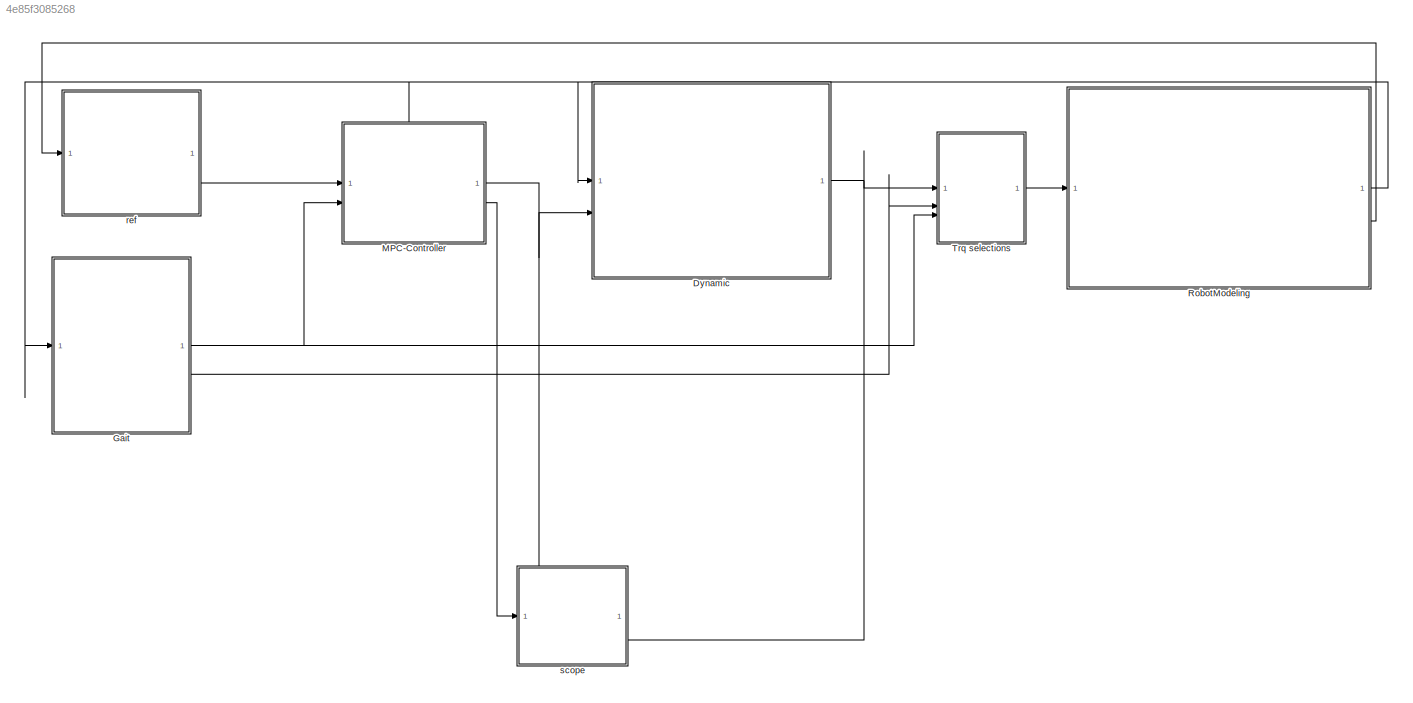
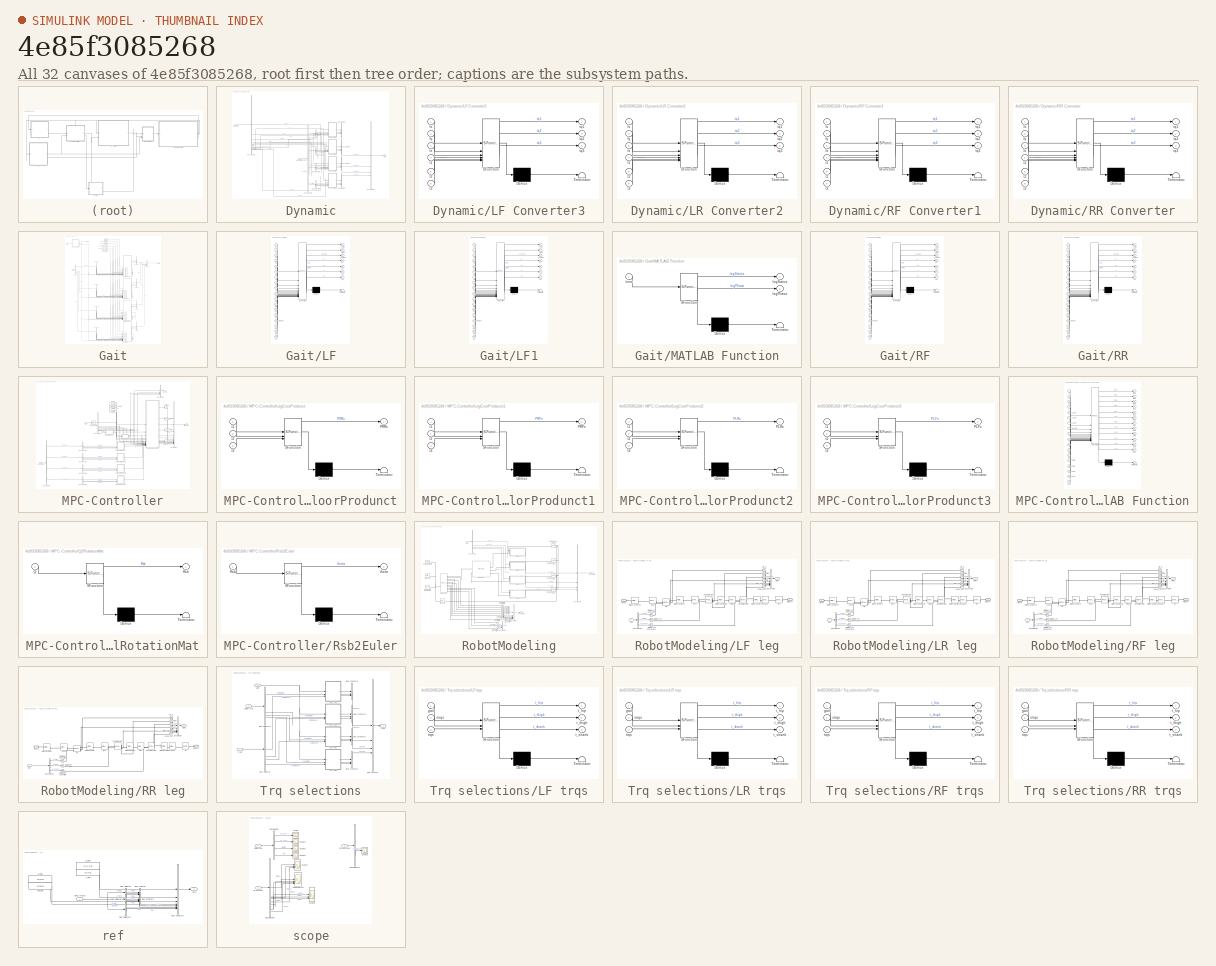
[diagram: thumbnail index - all 32 canvases of the model, root first then tree order]
MODEL slx_4e85f3085268
KIND model
CONFIG AbsTol = auto
CONFIG EnableMultiTasking = off
CONFIG FixedStep = 0.01
CONFIG MaxStep = auto
CONFIG MinStep = auto
CONFIG RelTol = 1e-3
CONFIG SampleTimeConstraint = Unconstrained
CONFIG SolverName = daessc
CONFIG StartTime = 0.0
CONFIG StopTime = 15
BLOCK [SubSystem] Dynamic
BLOCK [BusCreator] Dynamic/Bus Creator2
  DisplayOption = bar
  InheritFromInputs = on
  Inputs = 3
BLOCK [BusCreator] Dynamic/Bus Creator3
  DisplayOption = bar
  InheritFromInputs = on
  Inputs = 3
BLOCK [BusCreator] Dynamic/Bus Creator4
  DisplayOption = bar
  InheritFromInputs = on
  Inputs = 3
BLOCK [BusCreator] Dynamic/Bus Creator5
  DisplayOption = bar
  InheritFromInputs = on
  Inputs = 3
BLOCK [BusCreator] Dynamic/Bus Creator6
  DisplayOption = bar
  InheritFromInputs = on
  Inputs = 4
BLOCK [BusSelector] Dynamic/Bus Selector
  OutputSignals = fRR1,fRR2,fRR3,fRF1,fRF2,fRF3,fLR1,fLR2,fLR3,fLF1,fLF2,fLF3
BLOCK [BusSelector] Dynamic/Bus Selector2
  OutputSignals = RRstates,RFstates,LRstates,LFstates
BLOCK [BusSelector] Dynamic/Bus Selector3
  OutputSignals = signal1,signal2,signal3
BLOCK [BusSelector] Dynamic/Bus Selector4
  OutputSignals = signal1,signal2,signal3
BLOCK [BusSelector] Dynamic/Bus Selector5
  OutputSignals = signal1,signal2,signal3
BLOCK [BusSelector] Dynamic/Bus Selector6
  OutputSignals = signal1,signal2,signal3
BLOCK [SubSystem] Dynamic/LF Converter3
  ErrorFcn = Stateflow.Translate.translate
  PermitHierarchicalResolution = ExplicitOnly
  SFBlockType = MATLAB Function
  TreatAsAtomicUnit = on
BLOCK [Demux] Dynamic/LF Converter3/ Demux 
  Outputs = 1
BLOCK [S-Function] Dynamic/LF Converter3/ SFunction 
  EnableBusSupport = on
  FunctionName = sf_sfun
  PortCounts = [6 4]
  SFcnIsStateOwnerBlock = off
  SFunctionDeploymentMode = off
  Tag = Stateflow S-Function 4
BLOCK [Terminator] Dynamic/LF Converter3/ Terminator 
BLOCK [Inport] Dynamic/LF Converter3/fx
BLOCK [Inport] Dynamic/LF Converter3/fy
  Port = 2
BLOCK [Inport] Dynamic/LF Converter3/fz
  Port = 3
BLOCK [Inport] Dynamic/LF Converter3/t1
  Port = 4
BLOCK [Inport] Dynamic/LF Converter3/t2
  Port = 5
BLOCK [Inport] Dynamic/LF Converter3/t3
  Port = 6
BLOCK [Outport] Dynamic/LF Converter3/tq1
BLOCK [Outport] Dynamic/LF Converter3/tq2
  Port = 2
BLOCK [Outport] Dynamic/LF Converter3/tq3
  Port = 3
BLOCK [SubSystem] Dynamic/LR Converter2
  ErrorFcn = Stateflow.Translate.translate
  PermitHierarchicalResolution = ExplicitOnly
  SFBlockType = MATLAB Function
  TreatAsAtomicUnit = on
BLOCK [Demux] Dynamic/LR Converter2/ Demux 
  Outputs = 1
BLOCK [S-Function] Dynamic/LR Converter2/ SFunction 
  EnableBusSupport = on
  FunctionName = sf_sfun
  PortCounts = [6 4]
  SFcnIsStateOwnerBlock = off
  SFunctionDeploymentMode = off
  Tag = Stateflow S-Function 3
BLOCK [Terminator] Dynamic/LR Converter2/ Terminator 
BLOCK [Inport] Dynamic/LR Converter2/fx
BLOCK [Inport] Dynamic/LR Converter2/fy
  Port = 2
BLOCK [Inport] Dynamic/LR Converter2/fz
  Port = 3
BLOCK [Inport] Dynamic/LR Converter2/t1
  Port = 4
BLOCK [Inport] Dynamic/LR Converter2/t2
  Port = 5
BLOCK [Inport] Dynamic/LR Converter2/t3
  Port = 6
BLOCK [Outport] Dynamic/LR Converter2/tq1
BLOCK [Outport] Dynamic/LR Converter2/tq2
  Port = 2
BLOCK [Outport] Dynamic/LR Converter2/tq3
  Port = 3
BLOCK [Inport] Dynamic/Legs States
BLOCK [SubSystem] Dynamic/RF Converter1
  ErrorFcn = Stateflow.Translate.translate
  PermitHierarchicalResolution = ExplicitOnly
  SFBlockType = MATLAB Function
  TreatAsAtomicUnit = on
BLOCK [Demux] Dynamic/RF Converter1/ Demux 
  Outputs = 1
BLOCK [S-Function] Dynamic/RF Converter1/ SFunction 
  EnableBusSupport = on
  FunctionName = sf_sfun
  PortCounts = [6 4]
  SFcnIsStateOwnerBlock = off
  SFunctionDeploymentMode = off
  Tag = Stateflow S-Function 1
BLOCK [Terminator] Dynamic/RF Converter1/ Terminator 
BLOCK [Inport] Dynamic/RF Converter1/fx
BLOCK [Inport] Dynamic/RF Converter1/fy
  Port = 2
BLOCK [Inport] Dynamic/RF Converter1/fz
  Port = 3
BLOCK [Inport] Dynamic/RF Converter1/t1
  Port = 4
BLOCK [Inport] Dynamic/RF Converter1/t2
  Port = 5
BLOCK [Inport] Dynamic/RF Converter1/t3
  Port = 6
BLOCK [Outport] Dynamic/RF Converter1/tq1
BLOCK [Outport] Dynamic/RF Converter1/tq2
  Port = 2
BLOCK [Outport] Dynamic/RF Converter1/tq3
  Port = 3
BLOCK [SubSystem] Dynamic/RR Converter
  ErrorFcn = Stateflow.Translate.translate
  PermitHierarchicalResolution = ExplicitOnly
  SFBlockType = MATLAB Function
  TreatAsAtomicUnit = on
BLOCK [Demux] Dynamic/RR Converter/ Demux 
  Outputs = 1
BLOCK [S-Function] Dynamic/RR Converter/ SFunction 
  EnableBusSupport = on
  FunctionName = sf_sfun
  PortCounts = [6 4]
  SFcnIsStateOwnerBlock = off
  SFunctionDeploymentMode = off
  Tag = Stateflow S-Function 2
BLOCK [Terminator] Dynamic/RR Converter/ Terminator 
BLOCK [Inport] Dynamic/RR Converter/fx
BLOCK [Inport] Dynamic/RR Converter/fy
  Port = 2
BLOCK [Inport] Dynamic/RR Converter/fz
  Port = 3
BLOCK [Inport] Dynamic/RR Converter/t1
  Port = 4
BLOCK [Inport] Dynamic/RR Converter/t2
  Port = 5
BLOCK [Inport] Dynamic/RR Converter/t3
  Port = 6
BLOCK [Outport] Dynamic/RR Converter/tq1
BLOCK [Outport] Dynamic/RR Converter/tq2
  Port = 2
BLOCK [Outport] Dynamic/RR Converter/tq3
  Port = 3
BLOCK [Inport] Dynamic/tipForces
  Port = 2
BLOCK [Outport] Dynamic/trqs
BLOCK [SubSystem] Gait
BLOCK [BusCreator] Gait/Bus Creator
  DisplayOption = bar
  InheritFromInputs = on
  Inputs = RR Swing,RF swing,LR swing,LF swing
BLOCK [BusCreator] Gait/Bus Creator1
  DisplayOption = bar
  InheritFromInputs = on
  Inputs = 3
BLOCK [BusCreator] Gait/Bus Creator2
  DisplayOption = bar
  InheritFromInputs = on
  Inputs = 3
BLOCK [BusCreator] Gait/Bus Creator3
  DisplayOption = bar
  InheritFromInputs = on
  Inputs = 3
BLOCK [BusCreator] Gait/Bus Creator4
  DisplayOption = bar
  InheritFromInputs = on
  Inputs = 3
BLOCK [BusSelector] Gait/Bus Selector
  OutputSignals = RRstates,RFstates,LRstates,LFstates
BLOCK [BusSelector] Gait/Bus Selector1
  OutputSignals = signal1,signal2,signal3,signal4,signal5,signal6
BLOCK [BusSelector] Gait/Bus Selector2
  OutputSignals = signal1,signal2,signal3,signal4,signal5,signal6
BLOCK [BusSelector] Gait/Bus Selector3
  OutputSignals = signal1,signal2,signal3,signal4,signal5,signal6
BLOCK [BusSelector] Gait/Bus Selector4
  OutputSignals = signal1,signal2,signal3,signal4,signal5,signal6
BLOCK [Clock] Gait/Clock
BLOCK [Constant] Gait/Constant
  Value = param.l1
BLOCK [Constant] Gait/Constant1
  Value = param.l2
BLOCK [Constant] Gait/Constant2
  Value = param.l3
BLOCK [Constant] Gait/Constant3
  Value = leg_controller.kp
BLOCK [Constant] Gait/Constant4
  Value = leg_controller.ki
BLOCK [Constant] Gait/Constant5
  Value = leg_controller.kd
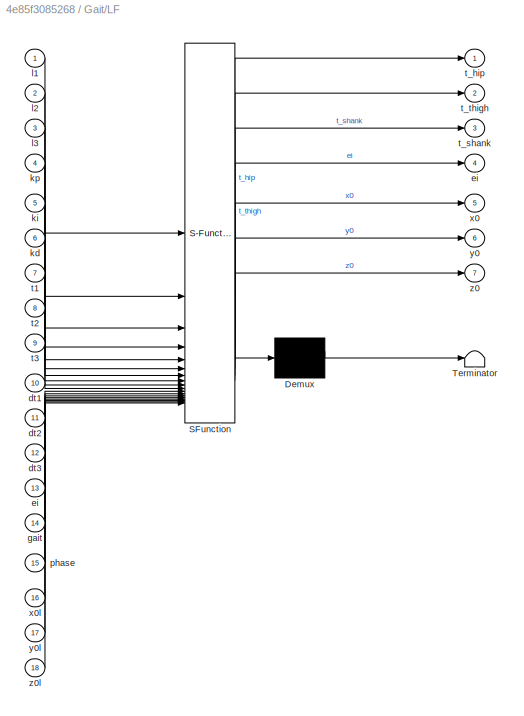
BLOCK [SubSystem] Gait/LF
  ErrorFcn = Stateflow.Translate.translate
  PermitHierarchicalResolution = ExplicitOnly
  SFBlockType = MATLAB Function
  TreatAsAtomicUnit = on
BLOCK [Demux] Gait/LF/ Demux 
  Outputs = 1
BLOCK [S-Function] Gait/LF/ SFunction 
  EnableBusSupport = on
  FunctionName = sf_sfun
  PortCounts = [18 8]
  SFcnIsStateOwnerBlock = off
  SFunctionDeploymentMode = off
  Tag = Stateflow S-Function 11
BLOCK [Terminator] Gait/LF/ Terminator 
BLOCK [Inport] Gait/LF/dt1
  Port = 10
BLOCK [Inport] Gait/LF/dt2
  Port = 11
BLOCK [Inport] Gait/LF/dt3
  Port = 12
BLOCK [Outport] Gait/LF/ei
  Port = 4
BLOCK [Inport] Gait/LF/ei 
  Port = 13
BLOCK [Inport] Gait/LF/gait
  Port = 14
BLOCK [Inport] Gait/LF/kd
  Port = 6
BLOCK [Inport] Gait/LF/ki
  Port = 5
BLOCK [Inport] Gait/LF/kp
  Port = 4
BLOCK [Inport] Gait/LF/l1
BLOCK [Inport] Gait/LF/l2
  Port = 2
BLOCK [Inport] Gait/LF/l3
  Port = 3
BLOCK [Inport] Gait/LF/phase
  Port = 15
BLOCK [Inport] Gait/LF/t1
  Port = 7
BLOCK [Inport] Gait/LF/t2
  Port = 8
BLOCK [Inport] Gait/LF/t3
  Port = 9
BLOCK [Outport] Gait/LF/t_hip
BLOCK [Outport] Gait/LF/t_shank
  Port = 3
BLOCK [Outport] Gait/LF/t_thigh
  Port = 2
BLOCK [Outport] Gait/LF/x0
  Port = 5
BLOCK [Inport] Gait/LF/x0l
  Port = 16
BLOCK [Outport] Gait/LF/y0
  Port = 6
BLOCK [Inport] Gait/LF/y0l
  Port = 17
BLOCK [Outport] Gait/LF/z0
  Port = 7
BLOCK [Inport] Gait/LF/z0l
  Port = 18
BLOCK [SubSystem] Gait/LF1
  ErrorFcn = Stateflow.Translate.translate
  PermitHierarchicalResolution = ExplicitOnly
  SFBlockType = MATLAB Function
  TreatAsAtomicUnit = on
BLOCK [Demux] Gait/LF1/ Demux 
  Outputs = 1
BLOCK [S-Function] Gait/LF1/ SFunction 
  EnableBusSupport = on
  FunctionName = sf_sfun
  PortCounts = [18 8]
  SFcnIsStateOwnerBlock = off
  SFunctionDeploymentMode = off
  Tag = Stateflow S-Function 18
BLOCK [Terminator] Gait/LF1/ Terminator 
BLOCK [Inport] Gait/LF1/dt1
  Port = 10
BLOCK [Inport] Gait/LF1/dt2
  Port = 11
BLOCK [Inport] Gait/LF1/dt3
  Port = 12
BLOCK [Outport] Gait/LF1/ei
  Port = 4
BLOCK [Inport] Gait/LF1/ei 
  Port = 13
BLOCK [Inport] Gait/LF1/gait
  Port = 14
BLOCK [Inport] Gait/LF1/kd
  Port = 6
BLOCK [Inport] Gait/LF1/ki
  Port = 5
BLOCK [Inport] Gait/LF1/kp
  Port = 4
BLOCK [Inport] Gait/LF1/l1
BLOCK [Inport] Gait/LF1/l2
  Port = 2
BLOCK [Inport] Gait/LF1/l3
  Port = 3
BLOCK [Inport] Gait/LF1/phase
  Port = 15
BLOCK [Inport] Gait/LF1/t1
  Port = 7
BLOCK [Inport] Gait/LF1/t2
  Port = 8
BLOCK [Inport] Gait/LF1/t3
  Port = 9
BLOCK [Outport] Gait/LF1/t_hip
BLOCK [Outport] Gait/LF1/t_shank
  Port = 3
BLOCK [Outport] Gait/LF1/t_thigh
  Port = 2
BLOCK [Outport] Gait/LF1/x0
  Port = 5
BLOCK [Inport] Gait/LF1/x0l
  Port = 16
BLOCK [Outport] Gait/LF1/y0
  Port = 6
BLOCK [Inport] Gait/LF1/y0l
  Port = 17
BLOCK [Outport] Gait/LF1/z0
  Port = 7
BLOCK [Inport] Gait/LF1/z0l
  Port = 18
BLOCK [SubSystem] Gait/MATLAB Function
  ErrorFcn = Stateflow.Translate.translate
  PermitHierarchicalResolution = ExplicitOnly
  SFBlockType = MATLAB Function
  TreatAsAtomicUnit = on
BLOCK [Demux] Gait/MATLAB Function/ Demux 
  Outputs = 1
BLOCK [S-Function] Gait/MATLAB Function/ SFunction 
  EnableBusSupport = on
  FunctionName = sf_sfun
  PortCounts = [1 3]
  SFcnIsStateOwnerBlock = off
  SFunctionDeploymentMode = off
  Tag = Stateflow S-Function 12
BLOCK [Terminator] Gait/MATLAB Function/ Terminator 
BLOCK [Outport] Gait/MATLAB Function/legPhase
  Port = 2
BLOCK [Outport] Gait/MATLAB Function/legStatus
BLOCK [Inport] Gait/MATLAB Function/time
BLOCK [SubSystem] Gait/RF
  ErrorFcn = Stateflow.Translate.translate
  PermitHierarchicalResolution = ExplicitOnly
  SFBlockType = MATLAB Function
  TreatAsAtomicUnit = on
BLOCK [Demux] Gait/RF/ Demux 
  Outputs = 1
BLOCK [S-Function] Gait/RF/ SFunction 
  EnableBusSupport = on
  FunctionName = sf_sfun
  PortCounts = [18 8]
  SFcnIsStateOwnerBlock = off
  SFunctionDeploymentMode = off
  Tag = Stateflow S-Function 17
BLOCK [Terminator] Gait/RF/ Terminator 
BLOCK [Inport] Gait/RF/dt1
  Port = 10
BLOCK [Inport] Gait/RF/dt2
  Port = 11
BLOCK [Inport] Gait/RF/dt3
  Port = 12
BLOCK [Outport] Gait/RF/ei
  Port = 4
BLOCK [Inport] Gait/RF/ei 
  Port = 13
BLOCK [Inport] Gait/RF/gait
  Port = 14
BLOCK [Inport] Gait/RF/kd
  Port = 6
BLOCK [Inport] Gait/RF/ki
  Port = 5
BLOCK [Inport] Gait/RF/kp
  Port = 4
BLOCK [Inport] Gait/RF/l1
BLOCK [Inport] Gait/RF/l2
  Port = 2
BLOCK [Inport] Gait/RF/l3
  Port = 3
BLOCK [Inport] Gait/RF/phase
  Port = 15
BLOCK [Inport] Gait/RF/t1
  Port = 7
BLOCK [Inport] Gait/RF/t2
  Port = 8
BLOCK [Inport] Gait/RF/t3
  Port = 9
BLOCK [Outport] Gait/RF/t_hip
BLOCK [Outport] Gait/RF/t_shank
  Port = 3
BLOCK [Outport] Gait/RF/t_thigh
  Port = 2
BLOCK [Outport] Gait/RF/x0
  Port = 5
BLOCK [Inport] Gait/RF/x0l
  Port = 16
BLOCK [Outport] Gait/RF/y0
  Port = 6
BLOCK [Inport] Gait/RF/y0l
  Port = 17
BLOCK [Outport] Gait/RF/z0
  Port = 7
BLOCK [Inport] Gait/RF/z0l
  Port = 18
BLOCK [SubSystem] Gait/RR
  ErrorFcn = Stateflow.Translate.translate
  PermitHierarchicalResolution = ExplicitOnly
  SFBlockType = MATLAB Function
  TreatAsAtomicUnit = on
BLOCK [Demux] Gait/RR/ Demux 
  Outputs = 1
BLOCK [S-Function] Gait/RR/ SFunction 
  EnableBusSupport = on
  FunctionName = sf_sfun
  PortCounts = [18 8]
  SFcnIsStateOwnerBlock = off
  SFunctionDeploymentMode = off
  Tag = Stateflow S-Function 14
BLOCK [Terminator] Gait/RR/ Terminator 
BLOCK [Inport] Gait/RR/dt1
  Port = 10
BLOCK [Inport] Gait/RR/dt2
  Port = 11
BLOCK [Inport] Gait/RR/dt3
  Port = 12
BLOCK [Outport] Gait/RR/ei
  Port = 4
BLOCK [Inport] Gait/RR/ei 
  Port = 13
BLOCK [Inport] Gait/RR/gait
  Port = 14
BLOCK [Inport] Gait/RR/kd
  Port = 6
BLOCK [Inport] Gait/RR/ki
  Port = 5
BLOCK [Inport] Gait/RR/kp
  Port = 4
BLOCK [Inport] Gait/RR/l1
BLOCK [Inport] Gait/RR/l2
  Port = 2
BLOCK [Inport] Gait/RR/l3
  Port = 3
BLOCK [Inport] Gait/RR/phase
  Port = 15
BLOCK [Inport] Gait/RR/t1
  Port = 7
BLOCK [Inport] Gait/RR/t2
  Port = 8
BLOCK [Inport] Gait/RR/t3
  Port = 9
BLOCK [Outport] Gait/RR/t_hip
BLOCK [Outport] Gait/RR/t_shank
  Port = 3
BLOCK [Outport] Gait/RR/t_thigh
  Port = 2
BLOCK [Outport] Gait/RR/x0
  Port = 5
BLOCK [Inport] Gait/RR/x0l
  Port = 16
BLOCK [Outport] Gait/RR/y0
  Port = 6
BLOCK [Inport] Gait/RR/y0l
  Port = 17
BLOCK [Outport] Gait/RR/z0
  Port = 7
BLOCK [Inport] Gait/RR/z0l
  Port = 18
BLOCK [UnitDelay] Gait/Unit Delay
  HasFrameUpgradeWarning = on
  InitialCondition = [0 0 0]
  SampleTime = -1
BLOCK [UnitDelay] Gait/Unit Delay1
  HasFrameUpgradeWarning = on
  SampleTime = -1
BLOCK [UnitDelay] Gait/Unit Delay10
  HasFrameUpgradeWarning = on
  SampleTime = -1
BLOCK [UnitDelay] Gait/Unit Delay11
  HasFrameUpgradeWarning = on
  SampleTime = -1
BLOCK [UnitDelay] Gait/Unit Delay12
  HasFrameUpgradeWarning = on
  InitialCondition = [0 0 0]
  SampleTime = -1
BLOCK [UnitDelay] Gait/Unit Delay13
  HasFrameUpgradeWarning = on
  SampleTime = -1
BLOCK [UnitDelay] Gait/Unit Delay14
  HasFrameUpgradeWarning = on
  SampleTime = -1
BLOCK [UnitDelay] Gait/Unit Delay15
  HasFrameUpgradeWarning = on
  SampleTime = -1
BLOCK [UnitDelay] Gait/Unit Delay2
  HasFrameUpgradeWarning = on
  SampleTime = -1
BLOCK [UnitDelay] Gait/Unit Delay3
  HasFrameUpgradeWarning = on
  SampleTime = -1
BLOCK [UnitDelay] Gait/Unit Delay4
  HasFrameUpgradeWarning = on
  InitialCondition = [0 0 0]
  SampleTime = -1
BLOCK [UnitDelay] Gait/Unit Delay5
  HasFrameUpgradeWarning = on
  SampleTime = -1
BLOCK [UnitDelay] Gait/Unit Delay6
  HasFrameUpgradeWarning = on
  SampleTime = -1
BLOCK [UnitDelay] Gait/Unit Delay7
  HasFrameUpgradeWarning = on
  SampleTime = -1
BLOCK [UnitDelay] Gait/Unit Delay8
  HasFrameUpgradeWarning = on
  InitialCondition = [0 0 0]
  SampleTime = -1
BLOCK [UnitDelay] Gait/Unit Delay9
  HasFrameUpgradeWarning = on
  SampleTime = -1
BLOCK [Outport] Gait/gait
BLOCK [Inport] Gait/legStates
BLOCK [Outport] Gait/swing trqs
  Port = 2
BLOCK [SubSystem] MPC-Controller
  PortSchema = {"entries":[{"content":{"sides":[{"content":{"connectorIds":["In1","In2"]},"type":"ConnectorPlacement.EquallySpacedRectSide","uuid":"82207ac2-498d-428d-bb4d-b0457fff2070"},{"content":{"connectorIds":["Out1","Out2"],"side":"RIGHT"},"type":"ConnectorPlacement.EquallySpacedRectSide","uuid":"62017463-8491-4b37-95c8-f619666068a7"},{"content":{"connectorIds":["In3"],"side":"TOP"},"type":"ConnectorPlacem...<+258ch>
BLOCK [BusCreator] MPC-Controller/Bus Creator
  DisplayOption = bar
  InheritFromInputs = on
  Inputs = 12
BLOCK [BusCreator] MPC-Controller/Bus Creator1
  DisplayOption = bar
  InheritFromInputs = on
  Inputs = 4
BLOCK [BusSelector] MPC-Controller/Bus Selector
  OutputSignals = p_des,v_des,w_des,dw_des,p_cur,v_cur,w,Q
BLOCK [BusSelector] MPC-Controller/Bus Selector2
  OutputSignals = RRstates,RFstates,LRstates,LFstates
BLOCK [BusSelector] MPC-Controller/Bus Selector3
  OutputSignals = signal1,signal2,signal3
BLOCK [BusSelector] MPC-Controller/Bus Selector4
  OutputSignals = signal1,signal2,signal3
BLOCK [BusSelector] MPC-Controller/Bus Selector5
  OutputSignals = signal1,signal2,signal3
BLOCK [BusSelector] MPC-Controller/Bus Selector6
  OutputSignals = signal1,signal2,signal3
BLOCK [Constant] MPC-Controller/Ib
  Value = param.Ib
  VectorParams1D = off
BLOCK [SubSystem] MPC-Controller/LegCoorProdunct
  ErrorFcn = Stateflow.Translate.translate
  PermitHierarchicalResolution = ExplicitOnly
  SFBlockType = MATLAB Function
  TreatAsAtomicUnit = on
BLOCK [Demux] MPC-Controller/LegCoorProdunct/ Demux 
  Outputs = 1
BLOCK [S-Function] MPC-Controller/LegCoorProdunct/ SFunction 
  EnableBusSupport = on
  FunctionName = sf_sfun
  PortCounts = [3 2]
  SFcnIsStateOwnerBlock = off
  SFunctionDeploymentMode = off
  Tag = Stateflow S-Function 5
BLOCK [Terminator] MPC-Controller/LegCoorProdunct/ Terminator 
BLOCK [Outport] MPC-Controller/LegCoorProdunct/PRRx
BLOCK [Inport] MPC-Controller/LegCoorProdunct/t1
BLOCK [Inport] MPC-Controller/LegCoorProdunct/t2
  Port = 2
BLOCK [Inport] MPC-Controller/LegCoorProdunct/t3
  Port = 3
BLOCK [SubSystem] MPC-Controller/LegCoorProdunct1
  ErrorFcn = Stateflow.Translate.translate
  PermitHierarchicalResolution = ExplicitOnly
  SFBlockType = MATLAB Function
  TreatAsAtomicUnit = on
BLOCK [Demux] MPC-Controller/LegCoorProdunct1/ Demux 
  Outputs = 1
BLOCK [S-Function] MPC-Controller/LegCoorProdunct1/ SFunction 
  EnableBusSupport = on
  FunctionName = sf_sfun
  PortCounts = [3 2]
  SFcnIsStateOwnerBlock = off
  SFunctionDeploymentMode = off
  Tag = Stateflow S-Function 6
BLOCK [Terminator] MPC-Controller/LegCoorProdunct1/ Terminator 
BLOCK [Outport] MPC-Controller/LegCoorProdunct1/PRFx
BLOCK [Inport] MPC-Controller/LegCoorProdunct1/t1
BLOCK [Inport] MPC-Controller/LegCoorProdunct1/t2
  Port = 2
BLOCK [Inport] MPC-Controller/LegCoorProdunct1/t3
  Port = 3
BLOCK [SubSystem] MPC-Controller/LegCoorProdunct2
  ErrorFcn = Stateflow.Translate.translate
  PermitHierarchicalResolution = ExplicitOnly
  SFBlockType = MATLAB Function
  TreatAsAtomicUnit = on
BLOCK [Demux] MPC-Controller/LegCoorProdunct2/ Demux 
  Outputs = 1
BLOCK [S-Function] MPC-Controller/LegCoorProdunct2/ SFunction 
  EnableBusSupport = on
  FunctionName = sf_sfun
  PortCounts = [3 2]
  SFcnIsStateOwnerBlock = off
  SFunctionDeploymentMode = off
  Tag = Stateflow S-Function 7
BLOCK [Terminator] MPC-Controller/LegCoorProdunct2/ Terminator 
BLOCK [Outport] MPC-Controller/LegCoorProdunct2/PLRx
BLOCK [Inport] MPC-Controller/LegCoorProdunct2/t1
BLOCK [Inport] MPC-Controller/LegCoorProdunct2/t2
  Port = 2
BLOCK [Inport] MPC-Controller/LegCoorProdunct2/t3
  Port = 3
BLOCK [SubSystem] MPC-Controller/LegCoorProdunct3
  ErrorFcn = Stateflow.Translate.translate
  PermitHierarchicalResolution = ExplicitOnly
  SFBlockType = MATLAB Function
  TreatAsAtomicUnit = on
BLOCK [Demux] MPC-Controller/LegCoorProdunct3/ Demux 
  Outputs = 1
BLOCK [S-Function] MPC-Controller/LegCoorProdunct3/ SFunction 
  EnableBusSupport = on
  FunctionName = sf_sfun
  PortCounts = [3 2]
  SFcnIsStateOwnerBlock = off
  SFunctionDeploymentMode = off
  Tag = Stateflow S-Function 8
BLOCK [Terminator] MPC-Controller/LegCoorProdunct3/ Terminator 
BLOCK [Outport] MPC-Controller/LegCoorProdunct3/PLFx
BLOCK [Inport] MPC-Controller/LegCoorProdunct3/t1
BLOCK [Inport] MPC-Controller/LegCoorProdunct3/t2
  Port = 2
BLOCK [Inport] MPC-Controller/LegCoorProdunct3/t3
  Port = 3
BLOCK [Inport] MPC-Controller/Legs States
  Port = 3
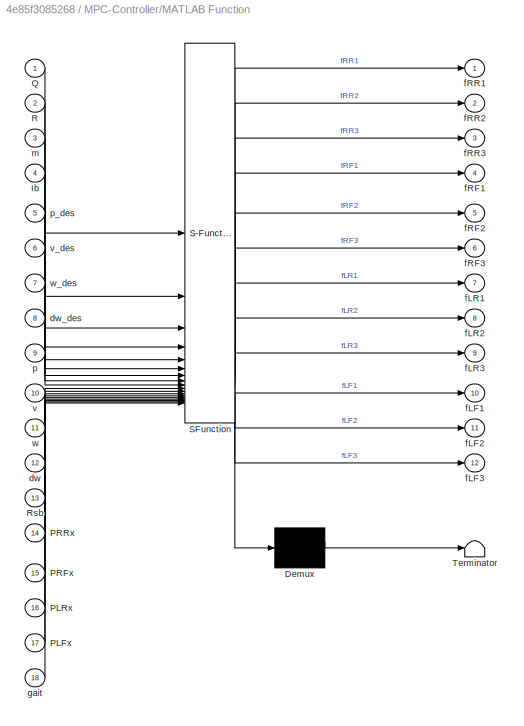
BLOCK [SubSystem] MPC-Controller/MATLAB Function
  ErrorFcn = Stateflow.Translate.translate
  PermitHierarchicalResolution = ExplicitOnly
  SFBlockType = MATLAB Function
  TreatAsAtomicUnit = on
BLOCK [Demux] MPC-Controller/MATLAB Function/ Demux 
  Outputs = 1
BLOCK [S-Function] MPC-Controller/MATLAB Function/ SFunction 
  EnableBusSupport = on
  FunctionName = sf_sfun
  PortCounts = [18 13]
  SFcnIsStateOwnerBlock = off
  SFunctionDeploymentMode = off
  Tag = Stateflow S-Function 10
BLOCK [Terminator] MPC-Controller/MATLAB Function/ Terminator 
BLOCK [Inport] MPC-Controller/MATLAB Function/Ib
  Port = 4
BLOCK [Inport] MPC-Controller/MATLAB Function/PLFx
  Port = 17
BLOCK [Inport] MPC-Controller/MATLAB Function/PLRx
  Port = 16
BLOCK [Inport] MPC-Controller/MATLAB Function/PRFx
  Port = 15
BLOCK [Inport] MPC-Controller/MATLAB Function/PRRx
  Port = 14
BLOCK [Inport] MPC-Controller/MATLAB Function/Q
BLOCK [Inport] MPC-Controller/MATLAB Function/R
  Port = 2
BLOCK [Inport] MPC-Controller/MATLAB Function/Rsb
  Port = 13
BLOCK [Inport] MPC-Controller/MATLAB Function/dw
  Port = 12
BLOCK [Inport] MPC-Controller/MATLAB Function/dw_des
  Port = 8
BLOCK [Outport] MPC-Controller/MATLAB Function/fLF1
  Port = 10
BLOCK [Outport] MPC-Controller/MATLAB Function/fLF2
  Port = 11
BLOCK [Outport] MPC-Controller/MATLAB Function/fLF3
  Port = 12
BLOCK [Outport] MPC-Controller/MATLAB Function/fLR1
  Port = 7
BLOCK [Outport] MPC-Controller/MATLAB Function/fLR2
  Port = 8
BLOCK [Outport] MPC-Controller/MATLAB Function/fLR3
  Port = 9
BLOCK [Outport] MPC-Controller/MATLAB Function/fRF1
  Port = 4
BLOCK [Outport] MPC-Controller/MATLAB Function/fRF2
  Port = 5
BLOCK [Outport] MPC-Controller/MATLAB Function/fRF3
  Port = 6
BLOCK [Outport] MPC-Controller/MATLAB Function/fRR1
BLOCK [Outport] MPC-Controller/MATLAB Function/fRR2
  Port = 2
BLOCK [Outport] MPC-Controller/MATLAB Function/fRR3
  Port = 3
BLOCK [Inport] MPC-Controller/MATLAB Function/gait
  Port = 18
BLOCK [Inport] MPC-Controller/MATLAB Function/m
  Port = 3
BLOCK [Inport] MPC-Controller/MATLAB Function/p
  Port = 9
BLOCK [Inport] MPC-Controller/MATLAB Function/p_des
  Port = 5
BLOCK [Inport] MPC-Controller/MATLAB Function/v
  Port = 10
BLOCK [Inport] MPC-Controller/MATLAB Function/v_des
  Port = 6
BLOCK [Inport] MPC-Controller/MATLAB Function/w
  Port = 11
BLOCK [Inport] MPC-Controller/MATLAB Function/w_des
  Port = 7
BLOCK [SubSystem] MPC-Controller/Q2RotationMat
  ErrorFcn = Stateflow.Translate.translate
  PermitHierarchicalResolution = ExplicitOnly
  SFBlockType = MATLAB Function
  TreatAsAtomicUnit = on
BLOCK [Demux] MPC-Controller/Q2RotationMat/ Demux 
  Outputs = 1
BLOCK [S-Function] MPC-Controller/Q2RotationMat/ SFunction 
  EnableBusSupport = on
  FunctionName = sf_sfun
  PortCounts = [1 2]
  SFcnIsStateOwnerBlock = off
  SFunctionDeploymentMode = off
  Tag = Stateflow S-Function 9
BLOCK [Terminator] MPC-Controller/Q2RotationMat/ Terminator 
BLOCK [Inport] MPC-Controller/Q2RotationMat/Q
BLOCK [Outport] MPC-Controller/Q2RotationMat/Rsb
BLOCK [RateTransition] MPC-Controller/Rate Transition
  OutPortSampleTime = 0.01
BLOCK [SubSystem] MPC-Controller/Rsb2Euler
  ErrorFcn = Stateflow.Translate.translate
  PermitHierarchicalResolution = ExplicitOnly
  SFBlockType = MATLAB Function
  TreatAsAtomicUnit = on
BLOCK [Demux] MPC-Controller/Rsb2Euler/ Demux 
  Outputs = 1
BLOCK [S-Function] MPC-Controller/Rsb2Euler/ SFunction 
  EnableBusSupport = on
  FunctionName = sf_sfun
  PortCounts = [1 2]
  SFcnIsStateOwnerBlock = off
  SFunctionDeploymentMode = off
  Tag = Stateflow S-Function 13
BLOCK [Terminator] MPC-Controller/Rsb2Euler/ Terminator 
BLOCK [Inport] MPC-Controller/Rsb2Euler/Rsb
BLOCK [Outport] MPC-Controller/Rsb2Euler/theta
BLOCK [Saturate] MPC-Controller/Saturation1
  LowerLimit = 0
  UpperLimit = 200
BLOCK [Saturate] MPC-Controller/Saturation10
  LowerLimit = 0
  UpperLimit = 200
BLOCK [Saturate] MPC-Controller/Saturation4
  LowerLimit = 0
  UpperLimit = 200
BLOCK [Saturate] MPC-Controller/Saturation7
  LowerLimit = 0
  UpperLimit = 200
BLOCK [Inport] MPC-Controller/gait
  Port = 2
BLOCK [Constant] MPC-Controller/m
  Value = param.m
BLOCK [Constant] MPC-Controller/model.Q
  Value = model.Q
  VectorParams1D = off
BLOCK [Constant] MPC-Controller/model.R
  Value = model.R
  VectorParams1D = off
BLOCK [Inport] MPC-Controller/refs
BLOCK [Outport] MPC-Controller/scope
  Port = 2
BLOCK [Outport] MPC-Controller/tipForces
BLOCK [SubSystem] RobotModeling
BLOCK [Outport] RobotModeling/ body states
  Port = 2
BLOCK [Reference] RobotModeling/6-DOF Joint  REF=sm_lib/Joints/6-DOF Joint
  SourceBlock = sm_lib/Joints/6-DOF Joint
  SourceType = 6-DOF Joint
BLOCK [Reference] RobotModeling/Brick Solid  REF=sm_lib/Body Elements/Brick Solid
  SourceBlock = sm_lib/Body Elements/Brick Solid
  SourceType = Brick Solid
BLOCK [Reference] RobotModeling/Brick Solid1  REF=sm_lib/Body Elements/Brick Solid
  SourceBlock = sm_lib/Body Elements/Brick Solid
  SourceType = Brick Solid
BLOCK [BusCreator] RobotModeling/Bus Creator
  DisplayOption = bar
  InheritFromInputs = on
  Inputs = px,py,pz,vx,vy,vz,w,Q
BLOCK [BusCreator] RobotModeling/Bus Creator1
  DisplayOption = bar
  InheritFromInputs = on
  Inputs = 3
BLOCK [BusCreator] RobotModeling/Bus Creator4
  DisplayOption = bar
  InheritFromInputs = on
  Inputs = RRstates,RFstates,LRstates,LFstates
BLOCK [BusSelector] RobotModeling/Bus Selector
  OutputSignals = RR Trqs,RF Trqs,LR Trqs,LF Trqs
BLOCK [SubSystem] RobotModeling/LF leg
BLOCK [BusCreator] RobotModeling/LF leg/Bus Creator
  DisplayOption = bar
  InheritFromInputs = on
  Inputs = 6
BLOCK [BusSelector] RobotModeling/LF leg/Bus Selector
  OutputSignals = t_hip,t_thigh,t_shank
BLOCK [Reference] RobotModeling/LF leg/Revolute Joint  REF=sm_lib/Joints/Revolute Joint
  SourceBlock = sm_lib/Joints/Revolute Joint
  SourceType = Revolute Joint
BLOCK [Reference] RobotModeling/LF leg/Revolute Joint1  REF=sm_lib/Joints/Revolute Joint
  SourceBlock = sm_lib/Joints/Revolute Joint
  SourceType = Revolute Joint
BLOCK [Reference] RobotModeling/LF leg/Rigid Transform  REF=sm_lib/Frames and
Transforms/Rigid
Transform
  SourceBlock = sm_lib/Frames and\nTransforms/Rigid\nTransform
  SourceType = Rigid\nTransform
BLOCK [Reference] RobotModeling/LF leg/Rigid Transform2  REF=sm_lib/Frames and
Transforms/Rigid
Transform
  SourceBlock = sm_lib/Frames and\nTransforms/Rigid\nTransform
  SourceType = Rigid\nTransform
BLOCK [Reference] RobotModeling/LF leg/Rigid Transform3  REF=sm_lib/Frames and
Transforms/Rigid
Transform
  SourceBlock = sm_lib/Frames and\nTransforms/Rigid\nTransform
  SourceType = Rigid\nTransform
BLOCK [Reference] RobotModeling/LF leg/Rigid Transform4  REF=sm_lib/Frames and
Transforms/Rigid
Transform
  SourceBlock = sm_lib/Frames and\nTransforms/Rigid\nTransform
  SourceType = Rigid\nTransform
BLOCK [Reference] RobotModeling/LF leg/Simulink-PS Converter  REF=nesl_utility/Simulink-PS
Converter
  SourceBlock = nesl_utility/Simulink-PS\nConverter
  SourceType = Simulink-PS\nConverter
BLOCK [Reference] RobotModeling/LF leg/Simulink-PS Converter1  REF=nesl_utility/Simulink-PS
Converter
  SourceBlock = nesl_utility/Simulink-PS\nConverter
  SourceType = Simulink-PS\nConverter
BLOCK [Reference] RobotModeling/LF leg/Simulink-PS Converter2  REF=nesl_utility/Simulink-PS
Converter
  SourceBlock = nesl_utility/Simulink-PS\nConverter
  SourceType = Simulink-PS\nConverter
BLOCK [Reference] RobotModeling/LF leg/base  REF=sm_lib/Body Elements/Brick Solid
  SourceBlock = sm_lib/Body Elements/Brick Solid
  SourceType = Brick Solid
BLOCK [Reference] RobotModeling/LF leg/hip  REF=sm_lib/Joints/Revolute Joint
  SourceBlock = sm_lib/Joints/Revolute Joint
  SourceType = Revolute Joint
BLOCK [Reference] RobotModeling/LF leg/hip_dq  REF=nesl_utility/PS-Simulink
Converter
  SourceBlock = nesl_utility/PS-Simulink\nConverter
  SourceType = PS-Simulink\nConverter
BLOCK [Reference] RobotModeling/LF leg/hip_q  REF=nesl_utility/PS-Simulink
Converter
  SourceBlock = nesl_utility/PS-Simulink\nConverter
  SourceType = PS-Simulink\nConverter
BLOCK [PMIOPort] RobotModeling/LF leg/hipcon
  Port = 2
  Side = Left
BLOCK [Reference] RobotModeling/LF leg/link1  REF=sm_lib/Body Elements/Brick Solid
  SourceBlock = sm_lib/Body Elements/Brick Solid
  SourceType = Brick Solid
BLOCK [Reference] RobotModeling/LF leg/shank  REF=sm_lib/Body Elements/Brick Solid
  SourceBlock = sm_lib/Body Elements/Brick Solid
  SourceType = Brick Solid
BLOCK [Reference] RobotModeling/LF leg/shank_dq  REF=nesl_utility/PS-Simulink
Converter
  SourceBlock = nesl_utility/PS-Simulink\nConverter
  SourceType = PS-Simulink\nConverter
BLOCK [Reference] RobotModeling/LF leg/shank_q  REF=nesl_utility/PS-Simulink
Converter
  SourceBlock = nesl_utility/PS-Simulink\nConverter
  SourceType = PS-Simulink\nConverter
BLOCK [Outport] RobotModeling/LF leg/states
BLOCK [Reference] RobotModeling/LF leg/thigh  REF=sm_lib/Body Elements/Brick Solid
  SourceBlock = sm_lib/Body Elements/Brick Solid
  SourceType = Brick Solid
BLOCK [Reference] RobotModeling/LF leg/thigh_dq  REF=nesl_utility/PS-Simulink
Converter
  SourceBlock = nesl_utility/PS-Simulink\nConverter
  SourceType = PS-Simulink\nConverter
BLOCK [Reference] RobotModeling/LF leg/thigh_q  REF=nesl_utility/PS-Simulink
Converter
  SourceBlock = nesl_utility/PS-Simulink\nConverter
  SourceType = PS-Simulink\nConverter
BLOCK [Reference] RobotModeling/LF leg/tip  REF=sm_lib/Body Elements/Spherical Solid
  SourceBlock = sm_lib/Body Elements/Spherical Solid
  SourceType = Spherical Solid
BLOCK [PMIOPort] RobotModeling/LF leg/tiptouch
  Side = Left
BLOCK [Inport] RobotModeling/LF leg/trqs
BLOCK [SubSystem] RobotModeling/LR leg
BLOCK [BusCreator] RobotModeling/LR leg/Bus Creator
  DisplayOption = bar
  InheritFromInputs = on
  Inputs = 6
BLOCK [BusSelector] RobotModeling/LR leg/Bus Selector
  OutputSignals = t_hip,t_thigh,t_shank
BLOCK [Reference] RobotModeling/LR leg/Revolute Joint  REF=sm_lib/Joints/Revolute Joint
  SourceBlock = sm_lib/Joints/Revolute Joint
  SourceType = Revolute Joint
BLOCK [Reference] RobotModeling/LR leg/Revolute Joint1  REF=sm_lib/Joints/Revolute Joint
  SourceBlock = sm_lib/Joints/Revolute Joint
  SourceType = Revolute Joint
BLOCK [Reference] RobotModeling/LR leg/Rigid Transform  REF=sm_lib/Frames and
Transforms/Rigid
Transform
  SourceBlock = sm_lib/Frames and\nTransforms/Rigid\nTransform
  SourceType = Rigid\nTransform
BLOCK [Reference] RobotModeling/LR leg/Rigid Transform2  REF=sm_lib/Frames and
Transforms/Rigid
Transform
  SourceBlock = sm_lib/Frames and\nTransforms/Rigid\nTransform
  SourceType = Rigid\nTransform
BLOCK [Reference] RobotModeling/LR leg/Rigid Transform3  REF=sm_lib/Frames and
Transforms/Rigid
Transform
  SourceBlock = sm_lib/Frames and\nTransforms/Rigid\nTransform
  SourceType = Rigid\nTransform
BLOCK [Reference] RobotModeling/LR leg/Rigid Transform4  REF=sm_lib/Frames and
Transforms/Rigid
Transform
  SourceBlock = sm_lib/Frames and\nTransforms/Rigid\nTransform
  SourceType = Rigid\nTransform
BLOCK [Reference] RobotModeling/LR leg/Simulink-PS Converter  REF=nesl_utility/Simulink-PS
Converter
  SourceBlock = nesl_utility/Simulink-PS\nConverter
  SourceType = Simulink-PS\nConverter
BLOCK [Reference] RobotModeling/LR leg/Simulink-PS Converter1  REF=nesl_utility/Simulink-PS
Converter
  SourceBlock = nesl_utility/Simulink-PS\nConverter
  SourceType = Simulink-PS\nConverter
BLOCK [Reference] RobotModeling/LR leg/Simulink-PS Converter2  REF=nesl_utility/Simulink-PS
Converter
  SourceBlock = nesl_utility/Simulink-PS\nConverter
  SourceType = Simulink-PS\nConverter
BLOCK [Reference] RobotModeling/LR leg/base  REF=sm_lib/Body Elements/Brick Solid
  SourceBlock = sm_lib/Body Elements/Brick Solid
  SourceType = Brick Solid
BLOCK [Reference] RobotModeling/LR leg/hip  REF=sm_lib/Joints/Revolute Joint
  SourceBlock = sm_lib/Joints/Revolute Joint
  SourceType = Revolute Joint
BLOCK [Reference] RobotModeling/LR leg/hip_dq  REF=nesl_utility/PS-Simulink
Converter
  SourceBlock = nesl_utility/PS-Simulink\nConverter
  SourceType = PS-Simulink\nConverter
BLOCK [Reference] RobotModeling/LR leg/hip_q  REF=nesl_utility/PS-Simulink
Converter
  SourceBlock = nesl_utility/PS-Simulink\nConverter
  SourceType = PS-Simulink\nConverter
BLOCK [PMIOPort] RobotModeling/LR leg/hipcon
  Port = 2
  Side = Left
BLOCK [Reference] RobotModeling/LR leg/link1  REF=sm_lib/Body Elements/Brick Solid
  SourceBlock = sm_lib/Body Elements/Brick Solid
  SourceType = Brick Solid
BLOCK [Reference] RobotModeling/LR leg/shank  REF=sm_lib/Body Elements/Brick Solid
  SourceBlock = sm_lib/Body Elements/Brick Solid
  SourceType = Brick Solid
BLOCK [Reference] RobotModeling/LR leg/shank_dq  REF=nesl_utility/PS-Simulink
Converter
  SourceBlock = nesl_utility/PS-Simulink\nConverter
  SourceType = PS-Simulink\nConverter
BLOCK [Reference] RobotModeling/LR leg/shank_q  REF=nesl_utility/PS-Simulink
Converter
  SourceBlock = nesl_utility/PS-Simulink\nConverter
  SourceType = PS-Simulink\nConverter
BLOCK [Outport] RobotModeling/LR leg/states
BLOCK [Reference] RobotModeling/LR leg/thigh  REF=sm_lib/Body Elements/Brick Solid
  SourceBlock = sm_lib/Body Elements/Brick Solid
  SourceType = Brick Solid
BLOCK [Reference] RobotModeling/LR leg/thigh_dq  REF=nesl_utility/PS-Simulink
Converter
  SourceBlock = nesl_utility/PS-Simulink\nConverter
  SourceType = PS-Simulink\nConverter
BLOCK [Reference] RobotModeling/LR leg/thigh_q  REF=nesl_utility/PS-Simulink
Converter
  SourceBlock = nesl_utility/PS-Simulink\nConverter
  SourceType = PS-Simulink\nConverter
BLOCK [Reference] RobotModeling/LR leg/tip  REF=sm_lib/Body Elements/Spherical Solid
  SourceBlock = sm_lib/Body Elements/Spherical Solid
  SourceType = Spherical Solid
BLOCK [PMIOPort] RobotModeling/LR leg/tiptouch
  Side = Left
BLOCK [Inport] RobotModeling/LR leg/trqs
BLOCK [Outport] RobotModeling/Legs States
BLOCK [Reference] RobotModeling/Mechanism Configuration  REF=sm_lib/Utilities/Mechanism
Configuration
  SourceBlock = sm_lib/Utilities/Mechanism\nConfiguration
  SourceType = Mechanism\nConfiguration
BLOCK [Reference] RobotModeling/PS-Simulink Converter  REF=nesl_utility/PS-Simulink
Converter
  SourceBlock = nesl_utility/PS-Simulink\nConverter
  SourceType = PS-Simulink\nConverter
BLOCK [Reference] RobotModeling/PS-Simulink Converter1  REF=nesl_utility/PS-Simulink
Converter
  SourceBlock = nesl_utility/PS-Simulink\nConverter
  SourceType = PS-Simulink\nConverter
BLOCK [Reference] RobotModeling/PS-Simulink Converter2  REF=nesl_utility/PS-Simulink
Converter
  SourceBlock = nesl_utility/PS-Simulink\nConverter
  SourceType = PS-Simulink\nConverter
BLOCK [Reference] RobotModeling/PS-Simulink Converter3  REF=nesl_utility/PS-Simulink
Converter
  SourceBlock = nesl_utility/PS-Simulink\nConverter
  SourceType = PS-Simulink\nConverter
BLOCK [Reference] RobotModeling/PS-Simulink Converter4  REF=nesl_utility/PS-Simulink
Converter
  SourceBlock = nesl_utility/PS-Simulink\nConverter
  SourceType = PS-Simulink\nConverter
BLOCK [Reference] RobotModeling/PS-Simulink Converter5  REF=nesl_utility/PS-Simulink
Converter
  SourceBlock = nesl_utility/PS-Simulink\nConverter
  SourceType = PS-Simulink\nConverter
BLOCK [Reference] RobotModeling/PS-Simulink Converter6  REF=nesl_utility/PS-Simulink
Converter
  SourceBlock = nesl_utility/PS-Simulink\nConverter
  SourceType = PS-Simulink\nConverter
BLOCK [Reference] RobotModeling/PS-Simulink Converter7  REF=nesl_utility/PS-Simulink
Converter
  SourceBlock = nesl_utility/PS-Simulink\nConverter
  SourceType = PS-Simulink\nConverter
BLOCK [Reference] RobotModeling/PS-Simulink Converter8  REF=nesl_utility/PS-Simulink
Converter
  SourceBlock = nesl_utility/PS-Simulink\nConverter
  SourceType = PS-Simulink\nConverter
BLOCK [Reference] RobotModeling/PS-Simulink Converter9  REF=nesl_utility/PS-Simulink
Converter
  SourceBlock = nesl_utility/PS-Simulink\nConverter
  SourceType = PS-Simulink\nConverter
BLOCK [SubSystem] RobotModeling/RF leg
BLOCK [BusCreator] RobotModeling/RF leg/Bus Creator
  DisplayOption = bar
  InheritFromInputs = on
  Inputs = 6
BLOCK [BusSelector] RobotModeling/RF leg/Bus Selector
  OutputSignals = t_hip,t_thigh,t_shank
BLOCK [Reference] RobotModeling/RF leg/Revolute Joint  REF=sm_lib/Joints/Revolute Joint
  SourceBlock = sm_lib/Joints/Revolute Joint
  SourceType = Revolute Joint
BLOCK [Reference] RobotModeling/RF leg/Revolute Joint1  REF=sm_lib/Joints/Revolute Joint
  SourceBlock = sm_lib/Joints/Revolute Joint
  SourceType = Revolute Joint
BLOCK [Reference] RobotModeling/RF leg/Rigid Transform  REF=sm_lib/Frames and
Transforms/Rigid
Transform
  SourceBlock = sm_lib/Frames and\nTransforms/Rigid\nTransform
  SourceType = Rigid\nTransform
BLOCK [Reference] RobotModeling/RF leg/Rigid Transform2  REF=sm_lib/Frames and
Transforms/Rigid
Transform
  SourceBlock = sm_lib/Frames and\nTransforms/Rigid\nTransform
  SourceType = Rigid\nTransform
BLOCK [Reference] RobotModeling/RF leg/Rigid Transform3  REF=sm_lib/Frames and
Transforms/Rigid
Transform
  SourceBlock = sm_lib/Frames and\nTransforms/Rigid\nTransform
  SourceType = Rigid\nTransform
BLOCK [Reference] RobotModeling/RF leg/Rigid Transform4  REF=sm_lib/Frames and
Transforms/Rigid
Transform
  SourceBlock = sm_lib/Frames and\nTransforms/Rigid\nTransform
  SourceType = Rigid\nTransform
BLOCK [Reference] RobotModeling/RF leg/Simulink-PS Converter  REF=nesl_utility/Simulink-PS
Converter
  SourceBlock = nesl_utility/Simulink-PS\nConverter
  SourceType = Simulink-PS\nConverter
BLOCK [Reference] RobotModeling/RF leg/Simulink-PS Converter1  REF=nesl_utility/Simulink-PS
Converter
  SourceBlock = nesl_utility/Simulink-PS\nConverter
  SourceType = Simulink-PS\nConverter
BLOCK [Reference] RobotModeling/RF leg/Simulink-PS Converter2  REF=nesl_utility/Simulink-PS
Converter
  SourceBlock = nesl_utility/Simulink-PS\nConverter
  SourceType = Simulink-PS\nConverter
BLOCK [Reference] RobotModeling/RF leg/base  REF=sm_lib/Body Elements/Brick Solid
  SourceBlock = sm_lib/Body Elements/Brick Solid
  SourceType = Brick Solid
BLOCK [Reference] RobotModeling/RF leg/hip  REF=sm_lib/Joints/Revolute Joint
  SourceBlock = sm_lib/Joints/Revolute Joint
  SourceType = Revolute Joint
BLOCK [Reference] RobotModeling/RF leg/hip_dq  REF=nesl_utility/PS-Simulink
Converter
  SourceBlock = nesl_utility/PS-Simulink\nConverter
  SourceType = PS-Simulink\nConverter
BLOCK [Reference] RobotModeling/RF leg/hip_q  REF=nesl_utility/PS-Simulink
Converter
  SourceBlock = nesl_utility/PS-Simulink\nConverter
  SourceType = PS-Simulink\nConverter
BLOCK [PMIOPort] RobotModeling/RF leg/hipcon
  Port = 2
  Side = Left
BLOCK [Reference] RobotModeling/RF leg/link1  REF=sm_lib/Body Elements/Brick Solid
  SourceBlock = sm_lib/Body Elements/Brick Solid
  SourceType = Brick Solid
BLOCK [Reference] RobotModeling/RF leg/shank  REF=sm_lib/Body Elements/Brick Solid
  SourceBlock = sm_lib/Body Elements/Brick Solid
  SourceType = Brick Solid
BLOCK [Reference] RobotModeling/RF leg/shank_dq  REF=nesl_utility/PS-Simulink
Converter
  SourceBlock = nesl_utility/PS-Simulink\nConverter
  SourceType = PS-Simulink\nConverter
BLOCK [Reference] RobotModeling/RF leg/shank_q  REF=nesl_utility/PS-Simulink
Converter
  SourceBlock = nesl_utility/PS-Simulink\nConverter
  SourceType = PS-Simulink\nConverter
BLOCK [Outport] RobotModeling/RF leg/states
BLOCK [Reference] RobotModeling/RF leg/thigh  REF=sm_lib/Body Elements/Brick Solid
  SourceBlock = sm_lib/Body Elements/Brick Solid
  SourceType = Brick Solid
BLOCK [Reference] RobotModeling/RF leg/thigh_dq  REF=nesl_utility/PS-Simulink
Converter
  SourceBlock = nesl_utility/PS-Simulink\nConverter
  SourceType = PS-Simulink\nConverter
BLOCK [Reference] RobotModeling/RF leg/thigh_q  REF=nesl_utility/PS-Simulink
Converter
  SourceBlock = nesl_utility/PS-Simulink\nConverter
  SourceType = PS-Simulink\nConverter
BLOCK [Reference] RobotModeling/RF leg/tip  REF=sm_lib/Body Elements/Spherical Solid
  SourceBlock = sm_lib/Body Elements/Spherical Solid
  SourceType = Spherical Solid
BLOCK [PMIOPort] RobotModeling/RF leg/tiptouch
  Side = Left
BLOCK [Inport] RobotModeling/RF leg/trqs
BLOCK [SubSystem] RobotModeling/RR leg
BLOCK [BusCreator] RobotModeling/RR leg/Bus Creator
  DisplayOption = bar
  InheritFromInputs = on
  Inputs = 6
BLOCK [BusSelector] RobotModeling/RR leg/Bus Selector
  OutputSignals = t_hip,t_thigh,t_shank
BLOCK [Reference] RobotModeling/RR leg/Revolute Joint  REF=sm_lib/Joints/Revolute Joint
  SourceBlock = sm_lib/Joints/Revolute Joint
  SourceType = Revolute Joint
BLOCK [Reference] RobotModeling/RR leg/Revolute Joint1  REF=sm_lib/Joints/Revolute Joint
  SourceBlock = sm_lib/Joints/Revolute Joint
  SourceType = Revolute Joint
BLOCK [Reference] RobotModeling/RR leg/Rigid Transform  REF=sm_lib/Frames and
Transforms/Rigid
Transform
  SourceBlock = sm_lib/Frames and\nTransforms/Rigid\nTransform
  SourceType = Rigid\nTransform
BLOCK [Reference] RobotModeling/RR leg/Rigid Transform2  REF=sm_lib/Frames and
Transforms/Rigid
Transform
  SourceBlock = sm_lib/Frames and\nTransforms/Rigid\nTransform
  SourceType = Rigid\nTransform
BLOCK [Reference] RobotModeling/RR leg/Rigid Transform3  REF=sm_lib/Frames and
Transforms/Rigid
Transform
  SourceBlock = sm_lib/Frames and\nTransforms/Rigid\nTransform
  SourceType = Rigid\nTransform
BLOCK [Reference] RobotModeling/RR leg/Rigid Transform4  REF=sm_lib/Frames and
Transforms/Rigid
Transform
  SourceBlock = sm_lib/Frames and\nTransforms/Rigid\nTransform
  SourceType = Rigid\nTransform
BLOCK [Reference] RobotModeling/RR leg/Simulink-PS Converter  REF=nesl_utility/Simulink-PS
Converter
  SourceBlock = nesl_utility/Simulink-PS\nConverter
  SourceType = Simulink-PS\nConverter
BLOCK [Reference] RobotModeling/RR leg/Simulink-PS Converter1  REF=nesl_utility/Simulink-PS
Converter
  SourceBlock = nesl_utility/Simulink-PS\nConverter
  SourceType = Simulink-PS\nConverter
BLOCK [Reference] RobotModeling/RR leg/Simulink-PS Converter2  REF=nesl_utility/Simulink-PS
Converter
  SourceBlock = nesl_utility/Simulink-PS\nConverter
  SourceType = Simulink-PS\nConverter
BLOCK [Reference] RobotModeling/RR leg/base  REF=sm_lib/Body Elements/Brick Solid
  SourceBlock = sm_lib/Body Elements/Brick Solid
  SourceType = Brick Solid
BLOCK [Reference] RobotModeling/RR leg/hip  REF=sm_lib/Joints/Revolute Joint
  SourceBlock = sm_lib/Joints/Revolute Joint
  SourceType = Revolute Joint
BLOCK [Reference] RobotModeling/RR leg/hip_dq  REF=nesl_utility/PS-Simulink
Converter
  SourceBlock = nesl_utility/PS-Simulink\nConverter
  SourceType = PS-Simulink\nConverter
BLOCK [Reference] RobotModeling/RR leg/hip_q  REF=nesl_utility/PS-Simulink
Converter
  SourceBlock = nesl_utility/PS-Simulink\nConverter
  SourceType = PS-Simulink\nConverter
BLOCK [PMIOPort] RobotModeling/RR leg/hipcon
  Port = 2
  Side = Left
BLOCK [Reference] RobotModeling/RR leg/link1  REF=sm_lib/Body Elements/Brick Solid
  SourceBlock = sm_lib/Body Elements/Brick Solid
  SourceType = Brick Solid
BLOCK [Reference] RobotModeling/RR leg/shank  REF=sm_lib/Body Elements/Brick Solid
  SourceBlock = sm_lib/Body Elements/Brick Solid
  SourceType = Brick Solid
BLOCK [Reference] RobotModeling/RR leg/shank_dq  REF=nesl_utility/PS-Simulink
Converter
  SourceBlock = nesl_utility/PS-Simulink\nConverter
  SourceType = PS-Simulink\nConverter
BLOCK [Reference] RobotModeling/RR leg/shank_q  REF=nesl_utility/PS-Simulink
Converter
  SourceBlock = nesl_utility/PS-Simulink\nConverter
  SourceType = PS-Simulink\nConverter
BLOCK [Outport] RobotModeling/RR leg/states
BLOCK [Reference] RobotModeling/RR leg/thigh  REF=sm_lib/Body Elements/Brick Solid
  SourceBlock = sm_lib/Body Elements/Brick Solid
  SourceType = Brick Solid
BLOCK [Reference] RobotModeling/RR leg/thigh_dq  REF=nesl_utility/PS-Simulink
Converter
  SourceBlock = nesl_utility/PS-Simulink\nConverter
  SourceType = PS-Simulink\nConverter
BLOCK [Reference] RobotModeling/RR leg/thigh_q  REF=nesl_utility/PS-Simulink
Converter
  SourceBlock = nesl_utility/PS-Simulink\nConverter
  SourceType = PS-Simulink\nConverter
BLOCK [Reference] RobotModeling/RR leg/tip  REF=sm_lib/Body Elements/Spherical Solid
  SourceBlock = sm_lib/Body Elements/Spherical Solid
  SourceType = Spherical Solid
BLOCK [PMIOPort] RobotModeling/RR leg/tiptouch
  Side = Left
BLOCK [Inport] RobotModeling/RR leg/trqs
BLOCK [Reference] RobotModeling/Solver Configuration  REF=nesl_utility/Solver
Configuration
  SourceBlock = nesl_utility/Solver\nConfiguration
  SourceType = Solver\nConfiguration
BLOCK [Reference] RobotModeling/Spatial Contact Force  REF=sm_lib/Forces and
Torques/Spatial
Contact Force
  SourceBlock = sm_lib/Forces and\nTorques/Spatial\nContact Force
  SourceType = Spatial\nContact Force
BLOCK [Reference] RobotModeling/Spatial Contact Force1  REF=sm_lib/Forces and
Torques/Spatial
Contact Force
  SourceBlock = sm_lib/Forces and\nTorques/Spatial\nContact Force
  SourceType = Spatial\nContact Force
BLOCK [Reference] RobotModeling/Spatial Contact Force2  REF=sm_lib/Forces and
Torques/Spatial
Contact Force
  SourceBlock = sm_lib/Forces and\nTorques/Spatial\nContact Force
  SourceType = Spatial\nContact Force
BLOCK [Reference] RobotModeling/Spatial Contact Force3  REF=sm_lib/Forces and
Torques/Spatial
Contact Force
  SourceBlock = sm_lib/Forces and\nTorques/Spatial\nContact Force
  SourceType = Spatial\nContact Force
BLOCK [Inport] RobotModeling/Trqs
BLOCK [Reference] RobotModeling/World Frame  REF=sm_lib/Frames and
Transforms/World Frame
  SourceBlock = sm_lib/Frames and\nTransforms/World Frame
  SourceType = World Frame
BLOCK [SubSystem] Trq selections
BLOCK [BusCreator] Trq selections/Bus Creator
  DisplayOption = bar
  InheritFromInputs = on
  Inputs = RR Trqs,RF Trqs,LR Trqs,LF Trqs
BLOCK [BusCreator] Trq selections/Bus Creator2
  DisplayOption = bar
  InheritFromInputs = on
  Inputs = 3
BLOCK [BusCreator] Trq selections/Bus Creator3
  DisplayOption = bar
  InheritFromInputs = on
  Inputs = 3
BLOCK [BusCreator] Trq selections/Bus Creator5
  DisplayOption = bar
  InheritFromInputs = on
  Inputs = 3
BLOCK [BusCreator] Trq selections/Bus Creator6
  DisplayOption = bar
  InheritFromInputs = on
  Inputs = 3
BLOCK [BusSelector] Trq selections/Bus Selector
  OutputSignals = RR stance,RF stance,LR stance,LF stance
BLOCK [BusSelector] Trq selections/Bus Selector1
  OutputSignals = RR Swing,RF swing,LR swing,LF swing
BLOCK [SubSystem] Trq selections/LF trqs
  ErrorFcn = Stateflow.Translate.translate
  PermitHierarchicalResolution = ExplicitOnly
  SFBlockType = MATLAB Function
  TreatAsAtomicUnit = on
BLOCK [Demux] Trq selections/LF trqs/ Demux 
  Outputs = 1
BLOCK [S-Function] Trq selections/LF trqs/ SFunction 
  EnableBusSupport = on
  FunctionName = sf_sfun
  PortCounts = [3 4]
  SFcnIsStateOwnerBlock = off
  SFunctionDeploymentMode = off
  Tag = Stateflow S-Function 16
BLOCK [Terminator] Trq selections/LF trqs/ Terminator 
BLOCK [Inport] Trq selections/LF trqs/gait
BLOCK [Inport] Trq selections/LF trqs/strqs
  Port = 2
BLOCK [Outport] Trq selections/LF trqs/t_hip
BLOCK [Outport] Trq selections/LF trqs/t_shank
  Port = 3
BLOCK [Outport] Trq selections/LF trqs/t_thigh
  Port = 2
BLOCK [Inport] Trq selections/LF trqs/trqs
  Port = 3
BLOCK [SubSystem] Trq selections/LR trqs
  ErrorFcn = Stateflow.Translate.translate
  PermitHierarchicalResolution = ExplicitOnly
  SFBlockType = MATLAB Function
  TreatAsAtomicUnit = on
BLOCK [Demux] Trq selections/LR trqs/ Demux 
  Outputs = 1
BLOCK [S-Function] Trq selections/LR trqs/ SFunction 
  EnableBusSupport = on
  FunctionName = sf_sfun
  PortCounts = [3 4]
  SFcnIsStateOwnerBlock = off
  SFunctionDeploymentMode = off
  Tag = Stateflow S-Function 20
BLOCK [Terminator] Trq selections/LR trqs/ Terminator 
BLOCK [Inport] Trq selections/LR trqs/gait
BLOCK [Inport] Trq selections/LR trqs/strqs
  Port = 2
BLOCK [Outport] Trq selections/LR trqs/t_hip
BLOCK [Outport] Trq selections/LR trqs/t_shank
  Port = 3
BLOCK [Outport] Trq selections/LR trqs/t_thigh
  Port = 2
BLOCK [Inport] Trq selections/LR trqs/trqs
  Port = 3
BLOCK [SubSystem] Trq selections/RF trqs
  ErrorFcn = Stateflow.Translate.translate
  PermitHierarchicalResolution = ExplicitOnly
  SFBlockType = MATLAB Function
  TreatAsAtomicUnit = on
BLOCK [Demux] Trq selections/RF trqs/ Demux 
  Outputs = 1
BLOCK [S-Function] Trq selections/RF trqs/ SFunction 
  EnableBusSupport = on
  FunctionName = sf_sfun
  PortCounts = [3 4]
  SFcnIsStateOwnerBlock = off
  SFunctionDeploymentMode = off
  Tag = Stateflow S-Function 19
BLOCK [Terminator] Trq selections/RF trqs/ Terminator 
BLOCK [Inport] Trq selections/RF trqs/gait
BLOCK [Inport] Trq selections/RF trqs/strqs
  Port = 2
BLOCK [Outport] Trq selections/RF trqs/t_hip
BLOCK [Outport] Trq selections/RF trqs/t_shank
  Port = 3
BLOCK [Outport] Trq selections/RF trqs/t_thigh
  Port = 2
BLOCK [Inport] Trq selections/RF trqs/trqs
  Port = 3
BLOCK [SubSystem] Trq selections/RR trqs
  ErrorFcn = Stateflow.Translate.translate
  PermitHierarchicalResolution = ExplicitOnly
  SFBlockType = MATLAB Function
  TreatAsAtomicUnit = on
BLOCK [Demux] Trq selections/RR trqs/ Demux 
  Outputs = 1
BLOCK [S-Function] Trq selections/RR trqs/ SFunction 
  EnableBusSupport = on
  FunctionName = sf_sfun
  PortCounts = [3 4]
  SFcnIsStateOwnerBlock = off
  SFunctionDeploymentMode = off
  Tag = Stateflow S-Function 15
BLOCK [Terminator] Trq selections/RR trqs/ Terminator 
BLOCK [Inport] Trq selections/RR trqs/gait
BLOCK [Inport] Trq selections/RR trqs/strqs
  Port = 2
BLOCK [Outport] Trq selections/RR trqs/t_hip
BLOCK [Outport] Trq selections/RR trqs/t_shank
  Port = 3
BLOCK [Outport] Trq selections/RR trqs/t_thigh
  Port = 2
BLOCK [Inport] Trq selections/RR trqs/trqs
  Port = 3
BLOCK [Outport] Trq selections/Trqs
BLOCK [Inport] Trq selections/gait
  Port = 3
BLOCK [Inport] Trq selections/swing trqs
  Port = 2
BLOCK [Inport] Trq selections/trqs
BLOCK [SubSystem] ref
BLOCK [BusCreator] ref/Bus Creator
  DisplayOption = bar
  InheritFromInputs = on
  Inputs = 3
BLOCK [BusCreator] ref/Bus Creator1
  DisplayOption = bar
  InheritFromInputs = on
  Inputs = 3
BLOCK [BusCreator] ref/Bus Creator2
  DisplayOption = bar
  InheritFromInputs = on
  Inputs = p_des,v_des,w_des,dw_des,p_cur,v_cur,w,Q
BLOCK [BusSelector] ref/Bus Selector
  OutputSignals = px,py,pz
BLOCK [BusSelector] ref/Bus Selector1
  OutputSignals = vx,vy,vz
BLOCK [BusSelector] ref/Bus Selector7
  OutputSignals = w,Q
BLOCK [Inport] ref/body states
BLOCK [Constant] ref/dw_des
  Value = [0;0;0]
  VectorParams1D = off
BLOCK [Constant] ref/q_des
  Value = [0 1.2 0]
BLOCK [Outport] ref/refs
BLOCK [Constant] ref/v_des
  Value = [0 0 0]
BLOCK [Constant] ref/w_des
  Value = [0;0;0]
  VectorParams1D = off
BLOCK [SubSystem] scope
  PortSchema = {"entries":[{"content":{"sides":[{"content":{"connectorIds":["In1"]},"type":"ConnectorPlacement.EquallySpacedRectSide","uuid":"c0265f70-bade-488b-ae2d-3c8d38e3d5ac"},{"content":{"side":"RIGHT"},"type":"ConnectorPlacement.EquallySpacedRectSide","uuid":"4660b7bc-d16b-42a4-852b-cf8f48253a71"},{"content":{"connectorIds":["In2","In3"],"side":"TOP"},"type":"ConnectorPlacement.EquallySpacedRectSide","uui...<+227ch>
BLOCK [BusSelector] scope/Bus Selector
  OutputSignals = p_cur,v_cur,theta,w
BLOCK [BusSelector] scope/Bus Selector1
  OutputSignals = fRR1,fRR2,fRR3,fRF1,fRF2,fRF3,fLR1,fLR2,fLR3,fLF1,fLF2,fLF3
BLOCK [BusSelector] scope/Bus Selector2
  OutputSignals = RR stance,RF stance,LR stance,LF stance
BLOCK [Scope] scope/Scope
  Floating = off
  NumInputPorts = 1
  ScopeSpecificationString = Simulink.scopes.TimeScopeBlockCfg('CurrentConfiguration', extmgr.ConfigurationSet(extmgr.Configuration('Core','General UI',true),extmgr.Configuration('Core','Source UI',true),extmgr.Configuration('Sources','WiredSimulink',true),extmgr.Configuration('Visuals','Time Domain',true,'SerializedDisplays',{struct('MinYLimReal','-0.01753','MaxYLimReal','2.61622','YLabelReal','','MinYLimMag','0.00000','MaxY...<+1396ch>
BLOCK [Scope] scope/Scope1
  Floating = off
  NumInputPorts = 1
  ScopeSpecificationString = Simulink.scopes.TimeScopeBlockCfg('CurrentConfiguration', extmgr.ConfigurationSet(extmgr.Configuration('Core','General UI',true),extmgr.Configuration('Core','Source UI',true),extmgr.Configuration('Sources','WiredSimulink',true,'DataLoggingVariableName','ScopeData1'),extmgr.Configuration('Visuals','Time Domain',true,'SerializedDisplays',{struct('MinYLimReal','-0.7982','MaxYLimReal','0.44124','YLabe...<+1407ch>
BLOCK [Scope] scope/Scope2
  Floating = off
  NumInputPorts = 1
  ScopeSpecificationString = Simulink.scopes.TimeScopeBlockCfg('CurrentConfiguration', extmgr.ConfigurationSet(extmgr.Configuration('Core','General UI',true),extmgr.Configuration('Core','Source UI',true),extmgr.Configuration('Sources','WiredSimulink',true,'DataLoggingVariableName','ScopeData2'),extmgr.Configuration('Visuals','Time Domain',true,'SerializedDisplays',{struct('MinYLimReal','-0.09558','MaxYLimReal','0.35844','YLab...<+1417ch>
BLOCK [Scope] scope/Scope3
  Floating = off
  NumInputPorts = 1
  ScopeSpecificationString = Simulink.scopes.TimeScopeBlockCfg('CurrentConfiguration', extmgr.ConfigurationSet(extmgr.Configuration('Core','General UI',true),extmgr.Configuration('Core','Source UI',true),extmgr.Configuration('Sources','WiredSimulink',true,'DataLoggingVariableName','ScopeData3'),extmgr.Configuration('Visuals','Time Domain',true,'SerializedDisplays',{struct('MinYLimReal','-22.25942','MaxYLimReal','25.52083','YL...<+1386ch>
BLOCK [Scope] scope/Scope4
  Floating = off
  NumInputPorts = 3
  ScopeSpecificationString = Simulink.scopes.TimeScopeBlockCfg('CurrentConfiguration', extmgr.ConfigurationSet(extmgr.Configuration('Core','General UI',true),extmgr.Configuration('Core','Source UI',true),extmgr.Configuration('Sources','WiredSimulink',true,'DataLoggingVariableName','ScopeData4'),extmgr.Configuration('Visuals','Time Domain',true,'SerializedDisplays',{struct('MinYLimReal','142.54101','MaxYLimReal','169.28927','Y...<+1555ch>
BLOCK [Scope] scope/Scope5
  Floating = off
  NumInputPorts = 3
  ScopeSpecificationString = Simulink.scopes.TimeScopeBlockCfg('CurrentConfiguration', extmgr.ConfigurationSet(extmgr.Configuration('Core','General UI',true),extmgr.Configuration('Core','Source UI',true),extmgr.Configuration('Sources','WiredSimulink',true,'DataLoggingVariableName','ScopeData5'),extmgr.Configuration('Visuals','Time Domain',true,'SerializedDisplays',{struct('MinYLimReal','-233.08818','MaxYLimReal','452.01788','...<+1534ch>
BLOCK [Scope] scope/Scope6
  Floating = off
  NumInputPorts = 1
  ScopeSpecificationString = Simulink.scopes.TimeScopeBlockCfg('CurrentConfiguration', extmgr.ConfigurationSet(extmgr.Configuration('Core','General UI',true),extmgr.Configuration('Core','Source UI',true),extmgr.Configuration('Sources','WiredSimulink',true,'DataLoggingVariableName','ScopeData6'),extmgr.Configuration('Visuals','Time Domain',true,'SerializedDisplays',{struct('MinYLimReal','-2809.28699','MaxYLimReal','1499.33841'...<+1463ch>
BLOCK [Inport] scope/force scope
  Port = 2
BLOCK [Inport] scope/state scope
BLOCK [Scope] scope/support forces
  Floating = off
  NumInputPorts = 4
  ScopeSpecificationString = Simulink.scopes.TimeScopeBlockCfg('CurrentConfiguration', extmgr.ConfigurationSet(extmgr.Configuration('Core','General UI',true),extmgr.Configuration('Core','Source UI',true),extmgr.Configuration('Sources','WiredSimulink',true,'DataLoggingVariableName','ScopeData1'),extmgr.Configuration('Visuals','Time Domain',true,'SerializedDisplays',{struct('MinYLimReal','10.54892','MaxYLimReal','13.18266','YLa...<+1504ch>
BLOCK [Inport] scope/torque scope
  Port = 3
LINE Dynamic/Bus Creator2:1 -> Dynamic/Bus Creator6:1
LINE Dynamic/Bus Creator3:1 -> Dynamic/Bus Creator6:2
LINE Dynamic/Bus Creator4:1 -> Dynamic/Bus Creator6:3
LINE Dynamic/Bus Creator5:1 -> Dynamic/Bus Creator6:4
LINE Dynamic/Bus Creator6:1 -> Dynamic/trqs:1
LINE Dynamic/Bus Selector2:1 -> Dynamic/Bus Selector3:1
LINE Dynamic/Bus Selector2:2 -> Dynamic/Bus Selector4:1
LINE Dynamic/Bus Selector2:3 -> Dynamic/Bus Selector5:1
LINE Dynamic/Bus Selector2:4 -> Dynamic/Bus Selector6:1
LINE Dynamic/Bus Selector3:1 -> Dynamic/RR Converter:4
LINE Dynamic/Bus Selector3:2 -> Dynamic/RR Converter:5
LINE Dynamic/Bus Selector3:3 -> Dynamic/RR Converter:6
LINE Dynamic/Bus Selector4:1 -> Dynamic/RF Converter1:4
LINE Dynamic/Bus Selector4:2 -> Dynamic/RF Converter1:5
LINE Dynamic/Bus Selector4:3 -> Dynamic/RF Converter1:6
LINE Dynamic/Bus Selector5:1 -> Dynamic/LR Converter2:4
LINE Dynamic/Bus Selector5:2 -> Dynamic/LR Converter2:5
LINE Dynamic/Bus Selector5:3 -> Dynamic/LR Converter2:6
LINE Dynamic/Bus Selector6:1 -> Dynamic/LF Converter3:4
LINE Dynamic/Bus Selector6:2 -> Dynamic/LF Converter3:5
LINE Dynamic/Bus Selector6:3 -> Dynamic/LF Converter3:6
LINE Dynamic/Bus Selector:1 -> Dynamic/RR Converter:1
LINE Dynamic/Bus Selector:10 -> Dynamic/LF Converter3:1
LINE Dynamic/Bus Selector:11 -> Dynamic/LF Converter3:2
LINE Dynamic/Bus Selector:12 -> Dynamic/LF Converter3:3
LINE Dynamic/Bus Selector:2 -> Dynamic/RR Converter:2
LINE Dynamic/Bus Selector:3 -> Dynamic/RR Converter:3
LINE Dynamic/Bus Selector:4 -> Dynamic/RF Converter1:1
LINE Dynamic/Bus Selector:5 -> Dynamic/RF Converter1:2
LINE Dynamic/Bus Selector:6 -> Dynamic/RF Converter1:3
LINE Dynamic/Bus Selector:7 -> Dynamic/LR Converter2:1
LINE Dynamic/Bus Selector:8 -> Dynamic/LR Converter2:2
LINE Dynamic/Bus Selector:9 -> Dynamic/LR Converter2:3
LINE Dynamic/LF Converter3:1 -> Dynamic/Bus Creator5:1
LINE Dynamic/LF Converter3:2 -> Dynamic/Bus Creator5:2
LINE Dynamic/LF Converter3:3 -> Dynamic/Bus Creator5:3
LINE Dynamic/LR Converter2:1 -> Dynamic/Bus Creator4:1
LINE Dynamic/LR Converter2:2 -> Dynamic/Bus Creator4:2
LINE Dynamic/LR Converter2:3 -> Dynamic/Bus Creator4:3
LINE Dynamic/Legs States:1 -> Dynamic/Bus Selector2:1
LINE Dynamic/RF Converter1:1 -> Dynamic/Bus Creator3:1
LINE Dynamic/RF Converter1:2 -> Dynamic/Bus Creator3:2
LINE Dynamic/RF Converter1:3 -> Dynamic/Bus Creator3:3
LINE Dynamic/RR Converter:1 -> Dynamic/Bus Creator2:1
LINE Dynamic/RR Converter:2 -> Dynamic/Bus Creator2:2
LINE Dynamic/RR Converter:3 -> Dynamic/Bus Creator2:3
LINE Dynamic/tipForces:1 -> Dynamic/Bus Selector:1
NET Dynamic:1 -> Trq selections:1, scope:3
LINE Gait/Bus Creator1:1 -> Gait/Bus Creator:1
LINE Gait/Bus Creator2:1 -> Gait/Bus Creator:4
LINE Gait/Bus Creator3:1 -> Gait/Bus Creator:2
LINE Gait/Bus Creator4:1 -> Gait/Bus Creator:3
LINE Gait/Bus Creator:1 -> Gait/swing trqs:1
LINE Gait/Bus Selector1:1 -> Gait/RR:7
LINE Gait/Bus Selector1:2 -> Gait/RR:8
LINE Gait/Bus Selector1:3 -> Gait/RR:9
LINE Gait/Bus Selector1:4 -> Gait/RR:10
LINE Gait/Bus Selector1:5 -> Gait/RR:11
LINE Gait/Bus Selector1:6 -> Gait/RR:12
LINE Gait/Bus Selector2:1 -> Gait/LF:7
LINE Gait/Bus Selector2:2 -> Gait/LF:8
LINE Gait/Bus Selector2:3 -> Gait/LF:9
LINE Gait/Bus Selector2:4 -> Gait/LF:10
LINE Gait/Bus Selector2:5 -> Gait/LF:11
LINE Gait/Bus Selector2:6 -> Gait/LF:12
LINE Gait/Bus Selector3:1 -> Gait/RF:7
LINE Gait/Bus Selector3:2 -> Gait/RF:8
LINE Gait/Bus Selector3:3 -> Gait/RF:9
LINE Gait/Bus Selector3:4 -> Gait/RF:10
LINE Gait/Bus Selector3:5 -> Gait/RF:11
LINE Gait/Bus Selector3:6 -> Gait/RF:12
LINE Gait/Bus Selector4:1 -> Gait/LF1:7
LINE Gait/Bus Selector4:2 -> Gait/LF1:8
LINE Gait/Bus Selector4:3 -> Gait/LF1:9
LINE Gait/Bus Selector4:4 -> Gait/LF1:10
LINE Gait/Bus Selector4:5 -> Gait/LF1:11
LINE Gait/Bus Selector4:6 -> Gait/LF1:12
LINE Gait/Bus Selector:1 -> Gait/Bus Selector1:1
LINE Gait/Bus Selector:2 -> Gait/Bus Selector3:1
LINE Gait/Bus Selector:3 -> Gait/Bus Selector4:1
LINE Gait/Bus Selector:4 -> Gait/Bus Selector2:1
LINE Gait/Clock:1 -> Gait/MATLAB Function:1
NET Gait/Constant1:1 -> Gait/LF1:2, Gait/LF:2, Gait/RF:2, Gait/RR:2
NET Gait/Constant2:1 -> Gait/LF1:3, Gait/LF:3, Gait/RF:3, Gait/RR:3
NET Gait/Constant3:1 -> Gait/LF1:4, Gait/LF:4, Gait/RF:4, Gait/RR:4
NET Gait/Constant4:1 -> Gait/LF1:5, Gait/LF:5, Gait/RF:5, Gait/RR:5
NET Gait/Constant5:1 -> Gait/LF1:6, Gait/LF:6, Gait/RF:6, Gait/RR:6
NET Gait/Constant:1 -> Gait/LF1:1, Gait/LF:1, Gait/RF:1, Gait/RR:1
LINE Gait/LF1:1 -> Gait/Bus Creator4:1
LINE Gait/LF1:2 -> Gait/Bus Creator4:2
LINE Gait/LF1:3 -> Gait/Bus Creator4:3
LINE Gait/LF1:4 -> Gait/Unit Delay12:1
LINE Gait/LF1:5 -> Gait/Unit Delay13:1
LINE Gait/LF1:6 -> Gait/Unit Delay14:1
LINE Gait/LF1:7 -> Gait/Unit Delay15:1
LINE Gait/LF:1 -> Gait/Bus Creator2:1
LINE Gait/LF:2 -> Gait/Bus Creator2:2
LINE Gait/LF:3 -> Gait/Bus Creator2:3
LINE Gait/LF:4 -> Gait/Unit Delay4:1
LINE Gait/LF:5 -> Gait/Unit Delay5:1
LINE Gait/LF:6 -> Gait/Unit Delay6:1
LINE Gait/LF:7 -> Gait/Unit Delay7:1
NET Gait/MATLAB Function:1 -> Gait/LF1:14, Gait/LF:14, Gait/RF:14, Gait/RR:14, Gait/gait:1
NET Gait/MATLAB Function:2 -> Gait/LF1:15, Gait/LF:15, Gait/RF:15, Gait/RR:15
LINE Gait/RF:1 -> Gait/Bus Creator3:1
LINE Gait/RF:2 -> Gait/Bus Creator3:2
LINE Gait/RF:3 -> Gait/Bus Creator3:3
LINE Gait/RF:4 -> Gait/Unit Delay8:1
LINE Gait/RF:5 -> Gait/Unit Delay9:1
LINE Gait/RF:6 -> Gait/Unit Delay10:1
LINE Gait/RF:7 -> Gait/Unit Delay11:1
LINE Gait/RR:1 -> Gait/Bus Creator1:1
LINE Gait/RR:2 -> Gait/Bus Creator1:2
LINE Gait/RR:3 -> Gait/Bus Creator1:3
LINE Gait/RR:4 -> Gait/Unit Delay:1
LINE Gait/RR:5 -> Gait/Unit Delay1:1
LINE Gait/RR:6 -> Gait/Unit Delay2:1
LINE Gait/RR:7 -> Gait/Unit Delay3:1
LINE Gait/Unit Delay10:1 -> Gait/RF:17
LINE Gait/Unit Delay11:1 -> Gait/RF:18
LINE Gait/Unit Delay12:1 -> Gait/LF1:13
LINE Gait/Unit Delay13:1 -> Gait/LF1:16
LINE Gait/Unit Delay14:1 -> Gait/LF1:17
LINE Gait/Unit Delay15:1 -> Gait/LF1:18
LINE Gait/Unit Delay1:1 -> Gait/RR:16
LINE Gait/Unit Delay2:1 -> Gait/RR:17
LINE Gait/Unit Delay3:1 -> Gait/RR:18
LINE Gait/Unit Delay4:1 -> Gait/LF:13
LINE Gait/Unit Delay5:1 -> Gait/LF:16
LINE Gait/Unit Delay6:1 -> Gait/LF:17
LINE Gait/Unit Delay7:1 -> Gait/LF:18
LINE Gait/Unit Delay8:1 -> Gait/RF:13
LINE Gait/Unit Delay9:1 -> Gait/RF:16
LINE Gait/Unit Delay:1 -> Gait/RR:13
LINE Gait/legStates:1 -> Gait/Bus Selector:1
NET Gait:1 -> MPC-Controller:2, Trq selections:3
LINE Gait:2 -> Trq selections:2
LINE MPC-Controller/Bus Creator1:1 -> MPC-Controller/scope:1
LINE MPC-Controller/Bus Creator:1 -> MPC-Controller/tipForces:1
LINE MPC-Controller/Bus Selector2:1 -> MPC-Controller/Bus Selector3:1
LINE MPC-Controller/Bus Selector2:2 -> MPC-Controller/Bus Selector4:1
LINE MPC-Controller/Bus Selector2:3 -> MPC-Controller/Bus Selector5:1
LINE MPC-Controller/Bus Selector2:4 -> MPC-Controller/Bus Selector6:1
LINE MPC-Controller/Bus Selector3:1 -> MPC-Controller/LegCoorProdunct:1
LINE MPC-Controller/Bus Selector3:2 -> MPC-Controller/LegCoorProdunct:2
LINE MPC-Controller/Bus Selector3:3 -> MPC-Controller/LegCoorProdunct:3
LINE MPC-Controller/Bus Selector4:1 -> MPC-Controller/LegCoorProdunct1:1
LINE MPC-Controller/Bus Selector4:2 -> MPC-Controller/LegCoorProdunct1:2
LINE MPC-Controller/Bus Selector4:3 -> MPC-Controller/LegCoorProdunct1:3
LINE MPC-Controller/Bus Selector5:1 -> MPC-Controller/LegCoorProdunct2:1
LINE MPC-Controller/Bus Selector5:2 -> MPC-Controller/LegCoorProdunct2:2
LINE MPC-Controller/Bus Selector5:3 -> MPC-Controller/LegCoorProdunct2:3
LINE MPC-Controller/Bus Selector6:1 -> MPC-Controller/LegCoorProdunct3:1
LINE MPC-Controller/Bus Selector6:2 -> MPC-Controller/LegCoorProdunct3:2
LINE MPC-Controller/Bus Selector6:3 -> MPC-Controller/LegCoorProdunct3:3
LINE MPC-Controller/Bus Selector:1 -> MPC-Controller/MATLAB Function:5
LINE MPC-Controller/Bus Selector:2 -> MPC-Controller/MATLAB Function:6
LINE MPC-Controller/Bus Selector:3 -> MPC-Controller/MATLAB Function:7
LINE MPC-Controller/Bus Selector:4 -> MPC-Controller/MATLAB Function:8
NET MPC-Controller/Bus Selector:5 -> MPC-Controller/Bus Creator1:1, MPC-Controller/MATLAB Function:9
NET MPC-Controller/Bus Selector:6 -> MPC-Controller/Bus Creator1:2, MPC-Controller/MATLAB Function:10
NET MPC-Controller/Bus Selector:7 -> MPC-Controller/Bus Creator1:4, MPC-Controller/MATLAB Function:12
LINE MPC-Controller/Bus Selector:8 -> MPC-Controller/Q2RotationMat:1
LINE MPC-Controller/Ib:1 -> MPC-Controller/MATLAB Function:4
LINE MPC-Controller/LegCoorProdunct1:1 -> MPC-Controller/MATLAB Function:15
LINE MPC-Controller/LegCoorProdunct2:1 -> MPC-Controller/MATLAB Function:16
LINE MPC-Controller/LegCoorProdunct3:1 -> MPC-Controller/MATLAB Function:17
LINE MPC-Controller/LegCoorProdunct:1 -> MPC-Controller/MATLAB Function:14
LINE MPC-Controller/Legs States:1 -> MPC-Controller/Bus Selector2:1
LINE MPC-Controller/MATLAB Function:1 -> MPC-Controller/Bus Creator:1
LINE MPC-Controller/MATLAB Function:10 -> MPC-Controller/Bus Creator:10
LINE MPC-Controller/MATLAB Function:11 -> MPC-Controller/Saturation10:1
LINE MPC-Controller/MATLAB Function:12 -> MPC-Controller/Bus Creator:12
LINE MPC-Controller/MATLAB Function:2 -> MPC-Controller/Saturation1:1
LINE MPC-Controller/MATLAB Function:3 -> MPC-Controller/Bus Creator:3
LINE MPC-Controller/MATLAB Function:4 -> MPC-Controller/Bus Creator:4
LINE MPC-Controller/MATLAB Function:5 -> MPC-Controller/Saturation4:1
LINE MPC-Controller/MATLAB Function:6 -> MPC-Controller/Bus Creator:6
LINE MPC-Controller/MATLAB Function:7 -> MPC-Controller/Bus Creator:7
LINE MPC-Controller/MATLAB Function:8 -> MPC-Controller/Saturation7:1
LINE MPC-Controller/MATLAB Function:9 -> MPC-Controller/Bus Creator:9
NET MPC-Controller/Q2RotationMat:1 -> MPC-Controller/MATLAB Function:13, MPC-Controller/Rsb2Euler:1
LINE MPC-Controller/Rate Transition:1 -> MPC-Controller/Bus Selector:1
NET MPC-Controller/Rsb2Euler:1 -> MPC-Controller/Bus Creator1:3, MPC-Controller/MATLAB Function:11
LINE MPC-Controller/Saturation10:1 -> MPC-Controller/Bus Creator:11
LINE MPC-Controller/Saturation1:1 -> MPC-Controller/Bus Creator:2
LINE MPC-Controller/Saturation4:1 -> MPC-Controller/Bus Creator:5
LINE MPC-Controller/Saturation7:1 -> MPC-Controller/Bus Creator:8
LINE MPC-Controller/gait:1 -> MPC-Controller/MATLAB Function:18
LINE MPC-Controller/m:1 -> MPC-Controller/MATLAB Function:3
LINE MPC-Controller/model.Q:1 -> MPC-Controller/MATLAB Function:1
LINE MPC-Controller/model.R:1 -> MPC-Controller/MATLAB Function:2
LINE MPC-Controller/refs:1 -> MPC-Controller/Rate Transition:1
NET MPC-Controller:1 -> Dynamic:2, scope:2
LINE MPC-Controller:2 -> scope:1
LINE RobotModeling/Bus Creator1:1 -> RobotModeling/Bus Creator:7
LINE RobotModeling/Bus Creator4:1 -> RobotModeling/Legs States:1
LINE RobotModeling/Bus Creator:1 -> RobotModeling/ body states:1
LINE RobotModeling/Bus Selector:1 -> RobotModeling/RR leg:1
LINE RobotModeling/Bus Selector:2 -> RobotModeling/RF leg:1
LINE RobotModeling/Bus Selector:3 -> RobotModeling/LR leg:1
LINE RobotModeling/Bus Selector:4 -> RobotModeling/LF leg:1
LINE RobotModeling/LF leg/Bus Creator:1 -> RobotModeling/LF leg/states:1
LINE RobotModeling/LF leg/Bus Selector:1 -> RobotModeling/LF leg/Simulink-PS Converter:1
LINE RobotModeling/LF leg/Bus Selector:2 -> RobotModeling/LF leg/Simulink-PS Converter1:1
LINE RobotModeling/LF leg/Bus Selector:3 -> RobotModeling/LF leg/Simulink-PS Converter2:1
LINE RobotModeling/LF leg/hip_dq:1 -> RobotModeling/LF leg/Bus Creator:4
LINE RobotModeling/LF leg/hip_q:1 -> RobotModeling/LF leg/Bus Creator:1
LINE RobotModeling/LF leg/shank_dq:1 -> RobotModeling/LF leg/Bus Creator:6
LINE RobotModeling/LF leg/shank_q:1 -> RobotModeling/LF leg/Bus Creator:3
LINE RobotModeling/LF leg/thigh_dq:1 -> RobotModeling/LF leg/Bus Creator:5
LINE RobotModeling/LF leg/thigh_q:1 -> RobotModeling/LF leg/Bus Creator:2
LINE RobotModeling/LF leg/trqs:1 -> RobotModeling/LF leg/Bus Selector:1
LINE RobotModeling/LF leg:1 -> RobotModeling/Bus Creator4:4
LINE RobotModeling/LR leg/Bus Creator:1 -> RobotModeling/LR leg/states:1
LINE RobotModeling/LR leg/Bus Selector:1 -> RobotModeling/LR leg/Simulink-PS Converter:1
LINE RobotModeling/LR leg/Bus Selector:2 -> RobotModeling/LR leg/Simulink-PS Converter1:1
LINE RobotModeling/LR leg/Bus Selector:3 -> RobotModeling/LR leg/Simulink-PS Converter2:1
LINE RobotModeling/LR leg/hip_dq:1 -> RobotModeling/LR leg/Bus Creator:4
LINE RobotModeling/LR leg/hip_q:1 -> RobotModeling/LR leg/Bus Creator:1
LINE RobotModeling/LR leg/shank_dq:1 -> RobotModeling/LR leg/Bus Creator:6
LINE RobotModeling/LR leg/shank_q:1 -> RobotModeling/LR leg/Bus Creator:3
LINE RobotModeling/LR leg/thigh_dq:1 -> RobotModeling/LR leg/Bus Creator:5
LINE RobotModeling/LR leg/thigh_q:1 -> RobotModeling/LR leg/Bus Creator:2
LINE RobotModeling/LR leg/trqs:1 -> RobotModeling/LR leg/Bus Selector:1
LINE RobotModeling/LR leg:1 -> RobotModeling/Bus Creator4:3
LINE RobotModeling/PS-Simulink Converter1:1 -> RobotModeling/Bus Creator:2
LINE RobotModeling/PS-Simulink Converter2:1 -> RobotModeling/Bus Creator:3
LINE RobotModeling/PS-Simulink Converter3:1 -> RobotModeling/Bus Creator:4
LINE RobotModeling/PS-Simulink Converter4:1 -> RobotModeling/Bus Creator:5
LINE RobotModeling/PS-Simulink Converter5:1 -> RobotModeling/Bus Creator:6
LINE RobotModeling/PS-Simulink Converter6:1 -> RobotModeling/Bus Creator1:1
LINE RobotModeling/PS-Simulink Converter7:1 -> RobotModeling/Bus Creator1:2
LINE RobotModeling/PS-Simulink Converter8:1 -> RobotModeling/Bus Creator1:3
LINE RobotModeling/PS-Simulink Converter9:1 -> RobotModeling/Bus Creator:8
LINE RobotModeling/PS-Simulink Converter:1 -> RobotModeling/Bus Creator:1
LINE RobotModeling/RF leg/Bus Creator:1 -> RobotModeling/RF leg/states:1
LINE RobotModeling/RF leg/Bus Selector:1 -> RobotModeling/RF leg/Simulink-PS Converter:1
LINE RobotModeling/RF leg/Bus Selector:2 -> RobotModeling/RF leg/Simulink-PS Converter1:1
LINE RobotModeling/RF leg/Bus Selector:3 -> RobotModeling/RF leg/Simulink-PS Converter2:1
LINE RobotModeling/RF leg/hip_dq:1 -> RobotModeling/RF leg/Bus Creator:4
LINE RobotModeling/RF leg/hip_q:1 -> RobotModeling/RF leg/Bus Creator:1
LINE RobotModeling/RF leg/shank_dq:1 -> RobotModeling/RF leg/Bus Creator:6
LINE RobotModeling/RF leg/shank_q:1 -> RobotModeling/RF leg/Bus Creator:3
LINE RobotModeling/RF leg/thigh_dq:1 -> RobotModeling/RF leg/Bus Creator:5
LINE RobotModeling/RF leg/thigh_q:1 -> RobotModeling/RF leg/Bus Creator:2
LINE RobotModeling/RF leg/trqs:1 -> RobotModeling/RF leg/Bus Selector:1
LINE RobotModeling/RF leg:1 -> RobotModeling/Bus Creator4:2
LINE RobotModeling/RR leg/Bus Creator:1 -> RobotModeling/RR leg/states:1
LINE RobotModeling/RR leg/Bus Selector:1 -> RobotModeling/RR leg/Simulink-PS Converter:1
LINE RobotModeling/RR leg/Bus Selector:2 -> RobotModeling/RR leg/Simulink-PS Converter1:1
LINE RobotModeling/RR leg/Bus Selector:3 -> RobotModeling/RR leg/Simulink-PS Converter2:1
LINE RobotModeling/RR leg/hip_dq:1 -> RobotModeling/RR leg/Bus Creator:4
LINE RobotModeling/RR leg/hip_q:1 -> RobotModeling/RR leg/Bus Creator:1
LINE RobotModeling/RR leg/shank_dq:1 -> RobotModeling/RR leg/Bus Creator:6
LINE RobotModeling/RR leg/shank_q:1 -> RobotModeling/RR leg/Bus Creator:3
LINE RobotModeling/RR leg/thigh_dq:1 -> RobotModeling/RR leg/Bus Creator:5
LINE RobotModeling/RR leg/thigh_q:1 -> RobotModeling/RR leg/Bus Creator:2
LINE RobotModeling/RR leg/trqs:1 -> RobotModeling/RR leg/Bus Selector:1
LINE RobotModeling/RR leg:1 -> RobotModeling/Bus Creator4:1
LINE RobotModeling/Trqs:1 -> RobotModeling/Bus Selector:1
NET RobotModeling:1 -> Dynamic:1, Gait:1, MPC-Controller:3
LINE RobotModeling:2 -> ref:1
LINE Trq selections/Bus Creator2:1 -> Trq selections/Bus Creator:1
LINE Trq selections/Bus Creator3:1 -> Trq selections/Bus Creator:4
LINE Trq selections/Bus Creator5:1 -> Trq selections/Bus Creator:2
LINE Trq selections/Bus Creator6:1 -> Trq selections/Bus Creator:3
LINE Trq selections/Bus Creator:1 -> Trq selections/Trqs:1
LINE Trq selections/Bus Selector1:1 -> Trq selections/RR trqs:2
LINE Trq selections/Bus Selector1:2 -> Trq selections/RF trqs:2
LINE Trq selections/Bus Selector1:3 -> Trq selections/LR trqs:2
LINE Trq selections/Bus Selector1:4 -> Trq selections/LF trqs:2
LINE Trq selections/Bus Selector:1 -> Trq selections/RR trqs:3
LINE Trq selections/Bus Selector:2 -> Trq selections/RF trqs:3
LINE Trq selections/Bus Selector:3 -> Trq selections/LR trqs:3
LINE Trq selections/Bus Selector:4 -> Trq selections/LF trqs:3
LINE Trq selections/LF trqs:1 -> Trq selections/Bus Creator3:1
LINE Trq selections/LF trqs:2 -> Trq selections/Bus Creator3:2
LINE Trq selections/LF trqs:3 -> Trq selections/Bus Creator3:3
LINE Trq selections/LR trqs:1 -> Trq selections/Bus Creator6:1
LINE Trq selections/LR trqs:2 -> Trq selections/Bus Creator6:2
LINE Trq selections/LR trqs:3 -> Trq selections/Bus Creator6:3
LINE Trq selections/RF trqs:1 -> Trq selections/Bus Creator5:1
LINE Trq selections/RF trqs:2 -> Trq selections/Bus Creator5:2
LINE Trq selections/RF trqs:3 -> Trq selections/Bus Creator5:3
LINE Trq selections/RR trqs:1 -> Trq selections/Bus Creator2:1
LINE Trq selections/RR trqs:2 -> Trq selections/Bus Creator2:2
LINE Trq selections/RR trqs:3 -> Trq selections/Bus Creator2:3
NET Trq selections/gait:1 -> Trq selections/LF trqs:1, Trq selections/LR trqs:1, Trq selections/RF trqs:1, Trq selections/RR trqs:1
LINE Trq selections/swing trqs:1 -> Trq selections/Bus Selector1:1
LINE Trq selections/trqs:1 -> Trq selections/Bus Selector:1
LINE Trq selections:1 -> RobotModeling:1
LINE ref/Bus Creator1:1 -> ref/Bus Creator2:6
LINE ref/Bus Creator2:1 -> ref/refs:1
LINE ref/Bus Creator:1 -> ref/Bus Creator2:5
LINE ref/Bus Selector1:1 -> ref/Bus Creator1:1
LINE ref/Bus Selector1:2 -> ref/Bus Creator1:2
LINE ref/Bus Selector1:3 -> ref/Bus Creator1:3
LINE ref/Bus Selector7:1 -> ref/Bus Creator2:7
LINE ref/Bus Selector7:2 -> ref/Bus Creator2:8
LINE ref/Bus Selector:1 -> ref/Bus Creator:1
LINE ref/Bus Selector:2 -> ref/Bus Creator:2
LINE ref/Bus Selector:3 -> ref/Bus Creator:3
NET ref/body states:1 -> ref/Bus Selector1:1, ref/Bus Selector7:1, ref/Bus Selector:1
LINE ref/dw_des:1 -> ref/Bus Creator2:4
LINE ref/q_des:1 -> ref/Bus Creator2:1
LINE ref/v_des:1 -> ref/Bus Creator2:2
LINE ref/w_des:1 -> ref/Bus Creator2:3
LINE ref:1 -> MPC-Controller:1
NET scope/Bus Selector1:1 -> scope/Scope4:1, scope/support forces:1
LINE scope/Bus Selector1:10 -> scope/support forces:4
LINE scope/Bus Selector1:2 -> scope/Scope4:2
LINE scope/Bus Selector1:3 -> scope/Scope4:3
LINE scope/Bus Selector1:4 -> scope/support forces:2
NET scope/Bus Selector1:7 -> scope/Scope5:1, scope/support forces:3
LINE scope/Bus Selector1:8 -> scope/Scope5:2
LINE scope/Bus Selector1:9 -> scope/Scope5:3
LINE scope/Bus Selector2:3 -> scope/Scope6:1
LINE scope/Bus Selector:1 -> scope/Scope:1
LINE scope/Bus Selector:2 -> scope/Scope1:1
LINE scope/Bus Selector:3 -> scope/Scope2:1
LINE scope/Bus Selector:4 -> scope/Scope3:1
LINE scope/force scope:1 -> scope/Bus Selector1:1
LINE scope/state scope:1 -> scope/Bus Selector:1
LINE scope/torque scope:1 -> scope/Bus Selector2:1
PNET net1: RobotModeling/6-DOF Joint:LConn1 -- RobotModeling/Brick Solid:RConn1 -- RobotModeling/Mechanism Configuration:RConn1 -- RobotModeling/Solver Configuration:RConn1 -- RobotModeling/World Frame:RConn1
PLINE RobotModeling/6-DOF Joint:RConn1 -- RobotModeling/Brick Solid1:RConn1
PLINE RobotModeling/6-DOF Joint:RConn10 -- RobotModeling/PS-Simulink Converter7:LConn1
PLINE RobotModeling/6-DOF Joint:RConn11 -- RobotModeling/PS-Simulink Converter8:LConn1
PLINE RobotModeling/6-DOF Joint:RConn2 -- RobotModeling/PS-Simulink Converter:LConn1
PLINE RobotModeling/6-DOF Joint:RConn3 -- RobotModeling/PS-Simulink Converter3:LConn1
PLINE RobotModeling/6-DOF Joint:RConn4 -- RobotModeling/PS-Simulink Converter1:LConn1
PLINE RobotModeling/6-DOF Joint:RConn5 -- RobotModeling/PS-Simulink Converter4:LConn1
PLINE RobotModeling/6-DOF Joint:RConn6 -- RobotModeling/PS-Simulink Converter2:LConn1
PLINE RobotModeling/6-DOF Joint:RConn7 -- RobotModeling/PS-Simulink Converter5:LConn1
PLINE RobotModeling/6-DOF Joint:RConn8 -- RobotModeling/PS-Simulink Converter9:LConn1
PLINE RobotModeling/6-DOF Joint:RConn9 -- RobotModeling/PS-Simulink Converter6:LConn1
PLINE RobotModeling/Brick Solid1:LConn1 -- RobotModeling/RR leg:LConn2
PLINE RobotModeling/Brick Solid1:LConn2 -- RobotModeling/RF leg:LConn2
PLINE RobotModeling/Brick Solid1:LConn3 -- RobotModeling/LF leg:LConn2
PLINE RobotModeling/Brick Solid1:RConn2 -- RobotModeling/LR leg:LConn2
PNET net2: RobotModeling/Brick Solid:LConn1 -- RobotModeling/Spatial Contact Force1:RConn1 -- RobotModeling/Spatial Contact Force2:RConn1 -- RobotModeling/Spatial Contact Force3:RConn1 -- RobotModeling/Spatial Contact Force:RConn1
PLINE RobotModeling/LF leg/Revolute Joint1:LConn1 -- RobotModeling/LF leg/thigh:LConn1
PLINE RobotModeling/LF leg/Revolute Joint1:LConn2 -- RobotModeling/LF leg/Simulink-PS Converter2:RConn1
PLINE RobotModeling/LF leg/Revolute Joint1:RConn1 -- RobotModeling/LF leg/Rigid Transform3:LConn1
PLINE RobotModeling/LF leg/Revolute Joint1:RConn2 -- RobotModeling/LF leg/shank_q:LConn1
PLINE RobotModeling/LF leg/Revolute Joint1:RConn3 -- RobotModeling/LF leg/shank_dq:LConn1
PLINE RobotModeling/LF leg/Revolute Joint:LConn1 -- RobotModeling/LF leg/link1:LConn1
PLINE RobotModeling/LF leg/Revolute Joint:LConn2 -- RobotModeling/LF leg/Simulink-PS Converter1:RConn1
PLINE RobotModeling/LF leg/Revolute Joint:RConn1 -- RobotModeling/LF leg/Rigid Transform2:LConn1
PLINE RobotModeling/LF leg/Revolute Joint:RConn2 -- RobotModeling/LF leg/thigh_q:LConn1
PLINE RobotModeling/LF leg/Revolute Joint:RConn3 -- RobotModeling/LF leg/thigh_dq:LConn1
PLINE RobotModeling/LF leg/Rigid Transform2:RConn1 -- RobotModeling/LF leg/thigh:RConn1
PLINE RobotModeling/LF leg/Rigid Transform3:RConn1 -- RobotModeling/LF leg/shank:RConn1
PLINE RobotModeling/LF leg/Rigid Transform4:LConn1 -- RobotModeling/LF leg/hipcon:RConn1
PLINE RobotModeling/LF leg/Rigid Transform4:RConn1 -- RobotModeling/LF leg/base:RConn1
PLINE RobotModeling/LF leg/Rigid Transform:LConn1 -- RobotModeling/LF leg/hip:RConn1
PLINE RobotModeling/LF leg/Rigid Transform:RConn1 -- RobotModeling/LF leg/link1:RConn1
PLINE RobotModeling/LF leg/Simulink-PS Converter:RConn1 -- RobotModeling/LF leg/hip:LConn2
PLINE RobotModeling/LF leg/base:LConn1 -- RobotModeling/LF leg/hip:LConn1
PLINE RobotModeling/LF leg/hip:RConn2 -- RobotModeling/LF leg/hip_q:LConn1
PLINE RobotModeling/LF leg/hip:RConn3 -- RobotModeling/LF leg/hip_dq:LConn1
PLINE RobotModeling/LF leg/shank:LConn1 -- RobotModeling/LF leg/tip:RConn1
PLINE RobotModeling/LF leg/tip:LConn1 -- RobotModeling/LF leg/tiptouch:RConn1
PLINE RobotModeling/LF leg:LConn1 -- RobotModeling/Spatial Contact Force3:LConn1
PLINE RobotModeling/LR leg/Revolute Joint1:LConn1 -- RobotModeling/LR leg/thigh:LConn1
PLINE RobotModeling/LR leg/Revolute Joint1:LConn2 -- RobotModeling/LR leg/Simulink-PS Converter2:RConn1
PLINE RobotModeling/LR leg/Revolute Joint1:RConn1 -- RobotModeling/LR leg/Rigid Transform3:LConn1
PLINE RobotModeling/LR leg/Revolute Joint1:RConn2 -- RobotModeling/LR leg/shank_q:LConn1
PLINE RobotModeling/LR leg/Revolute Joint1:RConn3 -- RobotModeling/LR leg/shank_dq:LConn1
PLINE RobotModeling/LR leg/Revolute Joint:LConn1 -- RobotModeling/LR leg/link1:LConn1
PLINE RobotModeling/LR leg/Revolute Joint:LConn2 -- RobotModeling/LR leg/Simulink-PS Converter1:RConn1
PLINE RobotModeling/LR leg/Revolute Joint:RConn1 -- RobotModeling/LR leg/Rigid Transform2:LConn1
PLINE RobotModeling/LR leg/Revolute Joint:RConn2 -- RobotModeling/LR leg/thigh_q:LConn1
PLINE RobotModeling/LR leg/Revolute Joint:RConn3 -- RobotModeling/LR leg/thigh_dq:LConn1
PLINE RobotModeling/LR leg/Rigid Transform2:RConn1 -- RobotModeling/LR leg/thigh:RConn1
PLINE RobotModeling/LR leg/Rigid Transform3:RConn1 -- RobotModeling/LR leg/shank:RConn1
PLINE RobotModeling/LR leg/Rigid Transform4:LConn1 -- RobotModeling/LR leg/hipcon:RConn1
PLINE RobotModeling/LR leg/Rigid Transform4:RConn1 -- RobotModeling/LR leg/base:RConn1
PLINE RobotModeling/LR leg/Rigid Transform:LConn1 -- RobotModeling/LR leg/hip:RConn1
PLINE RobotModeling/LR leg/Rigid Transform:RConn1 -- RobotModeling/LR leg/link1:RConn1
PLINE RobotModeling/LR leg/Simulink-PS Converter:RConn1 -- RobotModeling/LR leg/hip:LConn2
PLINE RobotModeling/LR leg/base:LConn1 -- RobotModeling/LR leg/hip:LConn1
PLINE RobotModeling/LR leg/hip:RConn2 -- RobotModeling/LR leg/hip_q:LConn1
PLINE RobotModeling/LR leg/hip:RConn3 -- RobotModeling/LR leg/hip_dq:LConn1
PLINE RobotModeling/LR leg/shank:LConn1 -- RobotModeling/LR leg/tip:RConn1
PLINE RobotModeling/LR leg/tip:LConn1 -- RobotModeling/LR leg/tiptouch:RConn1
PLINE RobotModeling/LR leg:LConn1 -- RobotModeling/Spatial Contact Force2:LConn1
PLINE RobotModeling/RF leg/Revolute Joint1:LConn1 -- RobotModeling/RF leg/thigh:LConn1
PLINE RobotModeling/RF leg/Revolute Joint1:LConn2 -- RobotModeling/RF leg/Simulink-PS Converter2:RConn1
PLINE RobotModeling/RF leg/Revolute Joint1:RConn1 -- RobotModeling/RF leg/Rigid Transform3:LConn1
PLINE RobotModeling/RF leg/Revolute Joint1:RConn2 -- RobotModeling/RF leg/shank_q:LConn1
PLINE RobotModeling/RF leg/Revolute Joint1:RConn3 -- RobotModeling/RF leg/shank_dq:LConn1
PLINE RobotModeling/RF leg/Revolute Joint:LConn1 -- RobotModeling/RF leg/link1:LConn1
PLINE RobotModeling/RF leg/Revolute Joint:LConn2 -- RobotModeling/RF leg/Simulink-PS Converter1:RConn1
PLINE RobotModeling/RF leg/Revolute Joint:RConn1 -- RobotModeling/RF leg/Rigid Transform2:LConn1
PLINE RobotModeling/RF leg/Revolute Joint:RConn2 -- RobotModeling/RF leg/thigh_q:LConn1
PLINE RobotModeling/RF leg/Revolute Joint:RConn3 -- RobotModeling/RF leg/thigh_dq:LConn1
PLINE RobotModeling/RF leg/Rigid Transform2:RConn1 -- RobotModeling/RF leg/thigh:RConn1
PLINE RobotModeling/RF leg/Rigid Transform3:RConn1 -- RobotModeling/RF leg/shank:RConn1
PLINE RobotModeling/RF leg/Rigid Transform4:LConn1 -- RobotModeling/RF leg/hipcon:RConn1
PLINE RobotModeling/RF leg/Rigid Transform4:RConn1 -- RobotModeling/RF leg/base:RConn1
PLINE RobotModeling/RF leg/Rigid Transform:LConn1 -- RobotModeling/RF leg/hip:RConn1
PLINE RobotModeling/RF leg/Rigid Transform:RConn1 -- RobotModeling/RF leg/link1:RConn1
PLINE RobotModeling/RF leg/Simulink-PS Converter:RConn1 -- RobotModeling/RF leg/hip:LConn2
PLINE RobotModeling/RF leg/base:LConn1 -- RobotModeling/RF leg/hip:LConn1
PLINE RobotModeling/RF leg/hip:RConn2 -- RobotModeling/RF leg/hip_q:LConn1
PLINE RobotModeling/RF leg/hip:RConn3 -- RobotModeling/RF leg/hip_dq:LConn1
PLINE RobotModeling/RF leg/shank:LConn1 -- RobotModeling/RF leg/tip:RConn1
PLINE RobotModeling/RF leg/tip:LConn1 -- RobotModeling/RF leg/tiptouch:RConn1
PLINE RobotModeling/RF leg:LConn1 -- RobotModeling/Spatial Contact Force1:LConn1
PLINE RobotModeling/RR leg/Revolute Joint1:LConn1 -- RobotModeling/RR leg/thigh:LConn1
PLINE RobotModeling/RR leg/Revolute Joint1:LConn2 -- RobotModeling/RR leg/Simulink-PS Converter2:RConn1
PLINE RobotModeling/RR leg/Revolute Joint1:RConn1 -- RobotModeling/RR leg/Rigid Transform3:LConn1
PLINE RobotModeling/RR leg/Revolute Joint1:RConn2 -- RobotModeling/RR leg/shank_q:LConn1
PLINE RobotModeling/RR leg/Revolute Joint1:RConn3 -- RobotModeling/RR leg/shank_dq:LConn1
PLINE RobotModeling/RR leg/Revolute Joint:LConn1 -- RobotModeling/RR leg/link1:LConn1
PLINE RobotModeling/RR leg/Revolute Joint:LConn2 -- RobotModeling/RR leg/Simulink-PS Converter1:RConn1
PLINE RobotModeling/RR leg/Revolute Joint:RConn1 -- RobotModeling/RR leg/Rigid Transform2:LConn1
PLINE RobotModeling/RR leg/Revolute Joint:RConn2 -- RobotModeling/RR leg/thigh_q:LConn1
PLINE RobotModeling/RR leg/Revolute Joint:RConn3 -- RobotModeling/RR leg/thigh_dq:LConn1
PLINE RobotModeling/RR leg/Rigid Transform2:RConn1 -- RobotModeling/RR leg/thigh:RConn1
PLINE RobotModeling/RR leg/Rigid Transform3:RConn1 -- RobotModeling/RR leg/shank:RConn1
PLINE RobotModeling/RR leg/Rigid Transform4:LConn1 -- RobotModeling/RR leg/hipcon:RConn1
PLINE RobotModeling/RR leg/Rigid Transform4:RConn1 -- RobotModeling/RR leg/base:RConn1
PLINE RobotModeling/RR leg/Rigid Transform:LConn1 -- RobotModeling/RR leg/hip:RConn1
PLINE RobotModeling/RR leg/Rigid Transform:RConn1 -- RobotModeling/RR leg/link1:RConn1
PLINE RobotModeling/RR leg/Simulink-PS Converter:RConn1 -- RobotModeling/RR leg/hip:LConn2
PLINE RobotModeling/RR leg/base:LConn1 -- RobotModeling/RR leg/hip:LConn1
PLINE RobotModeling/RR leg/hip:RConn2 -- RobotModeling/RR leg/hip_q:LConn1
PLINE RobotModeling/RR leg/hip:RConn3 -- RobotModeling/RR leg/hip_dq:LConn1
PLINE RobotModeling/RR leg/shank:LConn1 -- RobotModeling/RR leg/tip:RConn1
PLINE RobotModeling/RR leg/tip:LConn1 -- RobotModeling/RR leg/tiptouch:RConn1
PLINE RobotModeling/RR leg:LConn1 -- RobotModeling/Spatial Contact Force:LConn1
note: NET lines group one-source signal fan-out (src -> all destinations, sorted); 1:1 wires keep LINE; PNET lines group multi-terminal physical nets as a canonical sorted terminal list (undirected conserving connections); 2-terminal nets keep the pairwise PLINE form
CHART MPC-Controller/LegCoorProdunct1 states=1 transitions=1
  STATE_LABEL 'eML_blk_kernel()'
  STATE_LABEL 'SCRIPT:\nfunction PRFx = fcn(t1,t2,t3)\nl1 = 0.2;\nl2 = 0.8;\nl3 = 0.8;\n\nPBRF = [1.25;0;0.35];\n%% 通过正运动学求出足端在腿坐标系中坐标\nx = l1*cos(t1) - l3*(sin(t1)*sin(t2)*sin(t3) - cos(t2)*cos(t3)*sin(t1)) + l2*cos(t2)*sin(t1);\ny = l3*(cos(t1)*sin(t2)*sin(t3) - cos(t1)*cos(t2)*cos(t3)) + l1*sin(t1) - l2*cos(t1)*cos(t2);\nz = - l3*sin(t2 + t3) - l2*sin(t2);\n\nPRF = [-z;y;x];\n%% 转换到足端在机体坐标系中的坐标\nPTRF = PBRF + PRF;\n\n%% 转换成向...<+90ch>'
CHART MPC-Controller/LegCoorProdunct2 states=1 transitions=1
  STATE_LABEL 'eML_blk_kernel()'
  STATE_LABEL 'SCRIPT:\nfunction PLRx = fcn(t1,t2,t3)\nl1 = 0.2;\nl2 = 0.8;\nl3 = 0.8;\n\nisleft = -1;\n\nPBLR = [-1.25;0;-0.35];\n%% 通过正运动学求出足端在腿坐标系中坐标\nx = l1*cos(t1) - l3*(sin(t1)*sin(t2)*sin(t3) - cos(t2)*cos(t3)*sin(t1)) + l2*cos(t2)*sin(t1);\ny = l3*(cos(t1)*sin(t2)*sin(t3) - cos(t1)*cos(t2)*cos(t3)) + l1*sin(t1) - l2*cos(t1)*cos(t2);\nz = - l3*sin(t2 + t3) - l2*sin(t2);\n\nPLR = [-z * isleft;y;x*isleft];\n%% 转换到足端在机体坐标系...<+122ch>'
CHART MPC-Controller/LegCoorProdunct3 states=1 transitions=1
  STATE_LABEL 'eML_blk_kernel()'
  STATE_LABEL 'SCRIPT:\nfunction PLFx = fcn(t1,t2,t3)\nl1 = 0.2;\nl2 = 0.8;\nl3 = 0.8;\n\nisleft = -1;\n\nPBLF = [1.25;0;-0.35];\n%% 通过正运动学求出足端在腿坐标系中坐标\nx = l1*cos(t1) - l3*(sin(t1)*sin(t2)*sin(t3) - cos(t2)*cos(t3)*sin(t1)) + l2*cos(t2)*sin(t1);\ny = l3*(cos(t1)*sin(t2)*sin(t3) - cos(t1)*cos(t2)*cos(t3)) + l1*sin(t1) - l2*cos(t1)*cos(t2);\nz = - l3*sin(t2 + t3) - l2*sin(t2);\n\nPLF = [-z*isleft;y;x*isleft];\n%% 转换到足端在机体坐标系中的坐...<+119ch>'
CHART MPC-Controller/Q2RotationMat states=1 transitions=1
  STATE_LABEL 'eML_blk_kernel()'
  STATE_LABEL "SCRIPT:\nfunction Rsb = Q2RotationMat(Q)\n% Q = Q';\n% Qang = Q(1);\n% Qang = max(min(Qang,0.99),-0.99);\n% theta = 2 * acos(Qang);\n% if theta == 0\n%     Rsb = eye(3);\n% else\n%     Omega = (Q(2:4)/sin(theta/2))';\n%     Rsb = [cos(theta) + Omega(1)^2*(1-cos(theta)),Omega(1)*Omega(2)*(1-cos(theta))-Omega(3)*sin(theta),Omega(1)*Omega(3)*(1-cos(theta))+Omega(2)*sin(theta);\n%        Omega(1)*Omega(2)*(1-cos...<+521ch>"
CHART MPC-Controller/MATLAB Function states=1 transitions=1
  STATE_LABEL 'eML_blk_kernel()'
  STATE_LABEL "SCRIPT:\nfunction [fRR1,fRR2,fRR3,fRF1,fRF2,fRF3,fLR1,fLR2,fLR3,fLF1,fLF2,fLF3]= MPCControl(Q,R,m,Ib,p_des,v_des,w_des,dw_des,p,v,w,dw,Rsb,PRRx,PRFx,PLRx,PLFx,gait)\nRsb = Rsb';\n\n% 定义状态空间方程\nA = [zeros(3,3),eye(3),zeros(3,3),zeros(3,3),zeros(3,1);\n     zeros(3,3),zeros(3,3),zeros(3,3),zeros(3,3),[0;-1;0];\n     zeros(3,3),zeros(3,3),zeros(3,3),Rsb,zeros(3,1);\n     zeros(3,3),zeros(3,3),zeros(3,3),zero...<+1841ch>"
CHART Gait/LF states=1 transitions=1
  STATE_LABEL 'eML_blk_kernel()'
  STATE_LABEL 'SCRIPT:\nfunction [t_hip,t_thigh,t_shank,ei, x0,y0,z0] = leg_controller(l1,l2,l3,kp,ki,kd,t1,t2,t3,dt1,dt2,dt3,ei,gait,phase,x0l,y0l,z0l)\nh = 0.3;\nT = 0.6;\nisRight = -1;\nphase = phase(4);\n\n% xl = q_land(1);\n% yl = q_land(2);\n% zl = q_land(3);\n\n%% 正运动学部分\nif phase < 0.0001\n    ei = [0;0;0];\n    % % x\n    x0 = l1*cos(t1) - l3*(sin(t1)*sin(t2)*sin(t3) - cos(t2)*cos(t3)*sin(t1)) + l2*cos(t2)*sin(t1);\n  ...<+3608ch>'
CHART Gait/MATLAB Function states=1 transitions=1
  STATE_LABEL 'eML_blk_kernel()'
  STATE_LABEL 'SCRIPT:\nfunction [legStatus,legPhase] = Gait(time)\n%% 一种步态的基本量\nr = 0.85;\nlegDelayPhase = [0.5;0;0;0.5];\nlegPhase = [0;0;0;0];\nlegStatus = [1;1;1;1];\npostpone = 0;\nT = 4;\n\nif time <= postpone\n    legStatus = [1;1;1;1];\nelse \n    % for i = 1:4\n    %     t = mod(time - postpone - legDelayPhase(i)*T + T,T);\n    %     legPhase(i) = t/((1-r)*T);\n    %     if t <= r * T\n    %         legStatus(i) = 1;\n  ...<+509ch>'
CHART MPC-Controller/Rsb2Euler states=1 transitions=1
  STATE_LABEL 'eML_blk_kernel()'
  STATE_LABEL 'SCRIPT:\nfunction theta = Rsb2Euler(Rsb)\ny = -asin(Rsb(3,1)); \nz = atan2(Rsb(1,3)/cos(y),Rsb(3,3)/cos(y));\nx = atan2(Rsb(2,1)/cos(y),Rsb(3,3)/cos(y));\ntheta = [x;y;z];'
CHART Gait/RR states=1 transitions=1
  STATE_LABEL 'eML_blk_kernel()'
  STATE_LABEL 'SCRIPT:\nfunction [t_hip,t_thigh,t_shank,ei, x0,y0,z0] = leg_controller(l1,l2,l3,kp,ki,kd,t1,t2,t3,dt1,dt2,dt3,ei,gait,phase,x0l,y0l,z0l)\nh = 0.3;\nT = 0.6;\n\nphase = phase(1);\n% xl = q_land(1);\n% yl = q_land(2);\n% zl = q_land(3);\n\n%% 正运动学部分\nif phase <0.0001\n    ei = [0;0;0];\n    % % x\n    x0 = l1*cos(t1) - l3*(sin(t1)*sin(t2)*sin(t3) - cos(t2)*cos(t3)*sin(t1)) + l2*cos(t2)*sin(t1);\n    % % y\n    y0 ...<+3589ch>'
CHART Trq selections/RR trqs states=1 transitions=1
  STATE_LABEL 'eML_blk_kernel()'
  STATE_LABEL 'SCRIPT:\nfunction [t_hip,t_thigh,t_shank] = choosetrqs(gait,strqs,trqs)\nflag = gait(1);\nswitch flag\n    case 0\n        t_hip = strqs(1);\n        t_thigh = strqs(2);\n        t_shank = strqs(3);\n    case 1\n        t_hip = trqs(1);\n        t_thigh = trqs(2);\n        t_shank = trqs(3);\n    otherwise\n        t_hip = 0;\n        t_thigh = 0;\n        t_shank = 0;\nend'
CHART Trq selections/LF trqs states=1 transitions=1
  STATE_LABEL 'eML_blk_kernel()'
  STATE_LABEL 'SCRIPT:\nfunction [t_hip,t_thigh,t_shank] = choosetrqs(gait,strqs,trqs)\nflag = gait(4);\nswitch flag\n    case 0\n        t_hip = strqs(1);\n        t_thigh = strqs(2);\n        t_shank = strqs(3);\n    case 1\n        t_hip = trqs(1);\n        t_thigh = trqs(2);\n        t_shank = trqs(3);\n    otherwise\n        t_hip = 0;\n        t_thigh = 0;\n        t_shank = 0;\nend'
CHART Gait/RF states=1 transitions=1
  STATE_LABEL 'eML_blk_kernel()'
  STATE_LABEL 'SCRIPT:\nfunction [t_hip,t_thigh,t_shank,ei, x0,y0,z0] = leg_controller(l1,l2,l3,kp,ki,kd,t1,t2,t3,dt1,dt2,dt3,ei,gait,phase,x0l,y0l,z0l)\nh = 0.3;\nT = 0.6;\nphase = phase(2);\n\n% xl = q_land(1);\n% yl = q_land(2);\n% zl = q_land(3);\n\n%% 正运动学部分\nif phase < 0.0001\n    ei = [0;0;0];\n    % % x\n    x0 = l1*cos(t1) - l3*(sin(t1)*sin(t2)*sin(t3) - cos(t2)*cos(t3)*sin(t1)) + l2*cos(t2)*sin(t1);\n    % % y\n    y0...<+3590ch>'
CHART Gait/LF1 states=1 transitions=1
  STATE_LABEL 'eML_blk_kernel()'
  STATE_LABEL 'SCRIPT:\nfunction [t_hip,t_thigh,t_shank,ei, x0,y0,z0] = leg_controller(l1,l2,l3,kp,ki,kd,t1,t2,t3,dt1,dt2,dt3,ei,gait,phase,x0l,y0l,z0l)\nh = 0.3;\nT = 0.6;\nisRight = -1;\nphase = phase(3);\n\n% xl = q_land(1);\n% yl = q_land(2);\n% zl = q_land(3);\n\n%% 正运动学部分\nif phase < 0.0001\n    ei = [0;0;0];\n    % % x\n    x0 = l1*cos(t1) - l3*(sin(t1)*sin(t2)*sin(t3) - cos(t2)*cos(t3)*sin(t1)) + l2*cos(t2)*sin(t1);\n  ...<+3608ch>'
CHART Trq selections/RF trqs states=1 transitions=1
  STATE_LABEL 'eML_blk_kernel()'
  STATE_LABEL 'SCRIPT:\nfunction [t_hip,t_thigh,t_shank] = choosetrqs(gait,strqs,trqs)\nflag = gait(2);\nswitch flag\n    case 0\n        t_hip = strqs(1);\n        t_thigh = strqs(2);\n        t_shank = strqs(3);\n    case 1\n        t_hip = trqs(1);\n        t_thigh = trqs(2);\n        t_shank = trqs(3);\n    otherwise\n        t_hip = 0;\n        t_thigh = 0;\n        t_shank = 0;\nend'
CHART Trq selections/LR trqs states=1 transitions=1
  STATE_LABEL 'eML_blk_kernel()'
  STATE_LABEL 'SCRIPT:\nfunction [t_hip,t_thigh,t_shank] = choosetrqs(gait,strqs,trqs)\nflag = gait(3);\nswitch flag\n    case 0\n        t_hip = strqs(1);\n        t_thigh = strqs(2);\n        t_shank = strqs(3);\n    case 1\n        t_hip = trqs(1);\n        t_thigh = trqs(2);\n        t_shank = trqs(3);\n    otherwise\n        t_hip = 0;\n        t_thigh = 0;\n        t_shank = 0;\nend'
CHART Dynamic/RF Converter1 states=1 transitions=1
  STATE_LABEL 'eML_blk_kernel()'
  STATE_LABEL 'SCRIPT:\nfunction [tq1,tq2,tq3]= forces2trqs(fx,fy,fz,t1,t2,t3)\nFx = fz;\nFy = fy;\nFz = -fx;\nl1 = 0.2;\nl2 = 0.8;\nl3 = 0.8;\nJ = [l2*cos(t1)*cos(t2) - l1*sin(t1) - l3*(cos(t1)*sin(t2)*sin(t3) - cos(t1)*cos(t2)*cos(t3)), - l3*(cos(t2)*sin(t1)*sin(t3) + cos(t3)*sin(t1)*sin(t2)) - l2*sin(t1)*sin(t2), -l3*(cos(t2)*sin(t1)*sin(t3) + cos(t3)*sin(t1)*sin(t2));\nl1*cos(t1) - l3*(sin(t1)*sin(t2)*sin(t3) - cos(t...<+471ch>'
CHART Dynamic/RR Converter states=1 transitions=1
  STATE_LABEL 'eML_blk_kernel()'
  STATE_LABEL 'SCRIPT:\nfunction [tq1,tq2,tq3]= forces2trqs(fx,fy,fz,t1,t2,t3)\n\nFx = fz;\nFy = fy;\nFz = -fx;\nl1 = 0.2;\nl2 = 0.8;\nl3 = 0.8;\nJ = [l2*cos(t1)*cos(t2) - l1*sin(t1) - l3*(cos(t1)*sin(t2)*sin(t3) - cos(t1)*cos(t2)*cos(t3)), - l3*(cos(t2)*sin(t1)*sin(t3) + cos(t3)*sin(t1)*sin(t2)) - l2*sin(t1)*sin(t2), -l3*(cos(t2)*sin(t1)*sin(t3) + cos(t3)*sin(t1)*sin(t2));\nl1*cos(t1) - l3*(sin(t1)*sin(t2)*sin(t3) - cos(...<+472ch>'
CHART Dynamic/LR Converter2 states=1 transitions=1
  STATE_LABEL 'eML_blk_kernel()'
  STATE_LABEL 'SCRIPT:\nfunction [tq1,tq2,tq3]= forces2trqs(fx,fy,fz,t1,t2,t3)\nisRight = -1;\nFx = isRight * fz;\nFy = fy;\nFz = -1 * isRight * fx;\nl1 = 0.2;\nl2 = 0.8;\nl3 = 0.8;\nJ = [l2*cos(t1)*cos(t2) - l1*sin(t1) - l3*(cos(t1)*sin(t2)*sin(t3) - cos(t1)*cos(t2)*cos(t3)), - l3*(cos(t2)*sin(t1)*sin(t3) + cos(t3)*sin(t1)*sin(t2)) - l2*sin(t1)*sin(t2), -l3*(cos(t2)*sin(t1)*sin(t3) + cos(t3)*sin(t1)*sin(t2));\nl1*cos(t1)...<+509ch>'
CHART Dynamic/LF Converter3 states=1 transitions=1
  STATE_LABEL 'eML_blk_kernel()'
  STATE_LABEL 'SCRIPT:\nfunction [tq1,tq2,tq3]= forces2trqs(fx,fy,fz,t1,t2,t3)\nisRight = -1;\nFx = isRight * fz;\nFy = fy;\nFz = -1 * isRight * fx;\nl1 = 0.2;\nl2 = 0.8;\nl3 = 0.8;\nJ = [l2*cos(t1)*cos(t2) - l1*sin(t1) - l3*(cos(t1)*sin(t2)*sin(t3) - cos(t1)*cos(t2)*cos(t3)), - l3*(cos(t2)*sin(t1)*sin(t3) + cos(t3)*sin(t1)*sin(t2)) - l2*sin(t1)*sin(t2), -l3*(cos(t2)*sin(t1)*sin(t3) + cos(t3)*sin(t1)*sin(t2));\nl1*cos(t1)...<+509ch>'
CHART MPC-Controller/LegCoorProdunct states=1 transitions=1
  STATE_LABEL 'eML_blk_kernel()'
  STATE_LABEL 'SCRIPT:\nfunction PRRx = fcn(t1,t2,t3)\nl1 = 0.2;\nl2 = 0.8;\nl3 = 0.8;\n\nPBRR = [-1.25;0;0.35];\n%% 通过正运动学求出足端在腿坐标系中坐标\nx = l1*cos(t1) - l3*(sin(t1)*sin(t2)*sin(t3) - cos(t2)*cos(t3)*sin(t1)) + l2*cos(t2)*sin(t1);\ny = l3*(cos(t1)*sin(t2)*sin(t3) - cos(t1)*cos(t2)*cos(t3)) + l1*sin(t1) - l2*cos(t1)*cos(t2);\nz = - l3*sin(t2 + t3) - l2*sin(t2);\n\nPRR = [-z;y;x];\n%% 转换到足端在机体坐标系中的坐标\nPTRR = PBRR + PRR;\n\n%% 转换成...<+91ch>'
CHART  states=0 transitions=0
CHART  states=0 transitions=0
CHART  states=0 transitions=0
CHART  states=0 transitions=0
CHART  states=0 transitions=0
CHART  states=0 transitions=0
CHART  states=0 transitions=0
CHART  states=0 transitions=0
CHART  states=0 transitions=0
CHART  states=0 transitions=0
CHART  states=0 transitions=0
CHART  states=0 transitions=0
CHART  states=0 transitions=0
CHART  states=0 transitions=0
CHART  states=0 transitions=0
CHART  states=0 transitions=0
CHART  states=0 transitions=0
CHART  states=0 transitions=0
CHART  states=0 transitions=0
CHART  states=0 transitions=0
